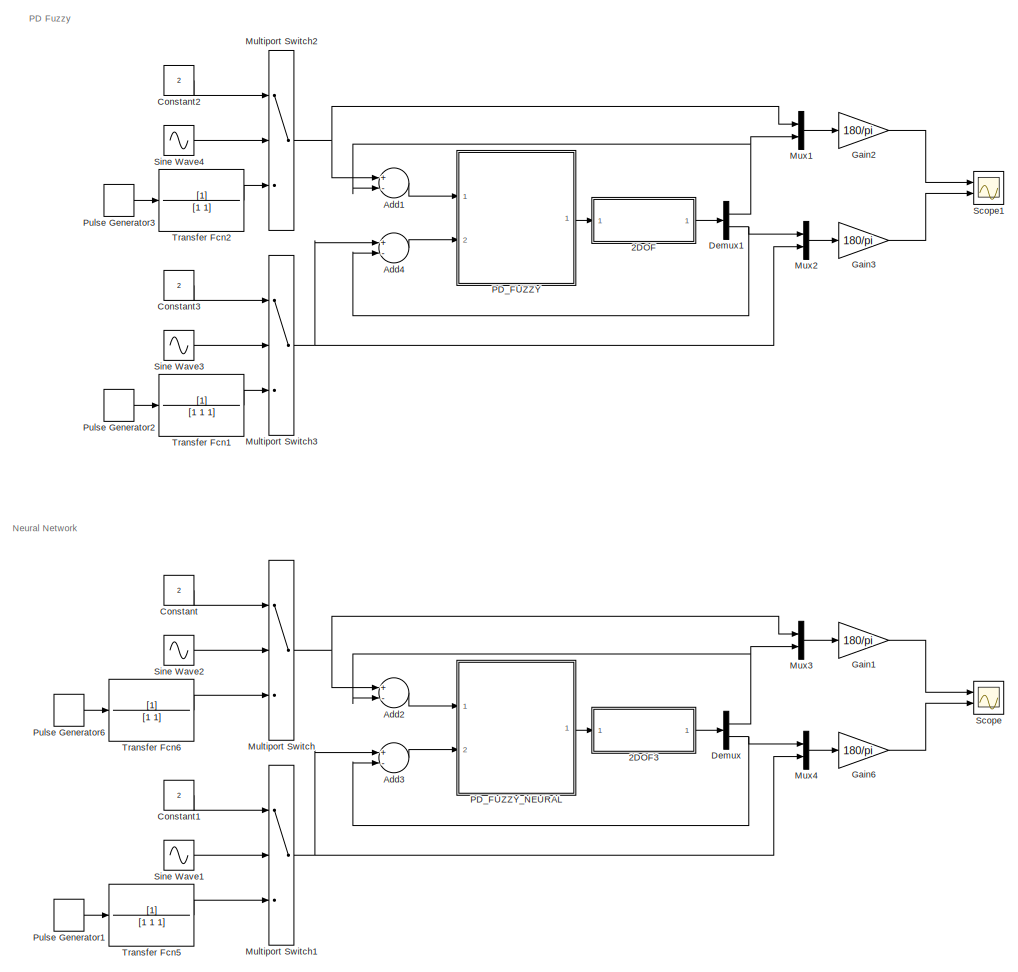
[diagram: root canvas - part 1/2, full width, middle band]
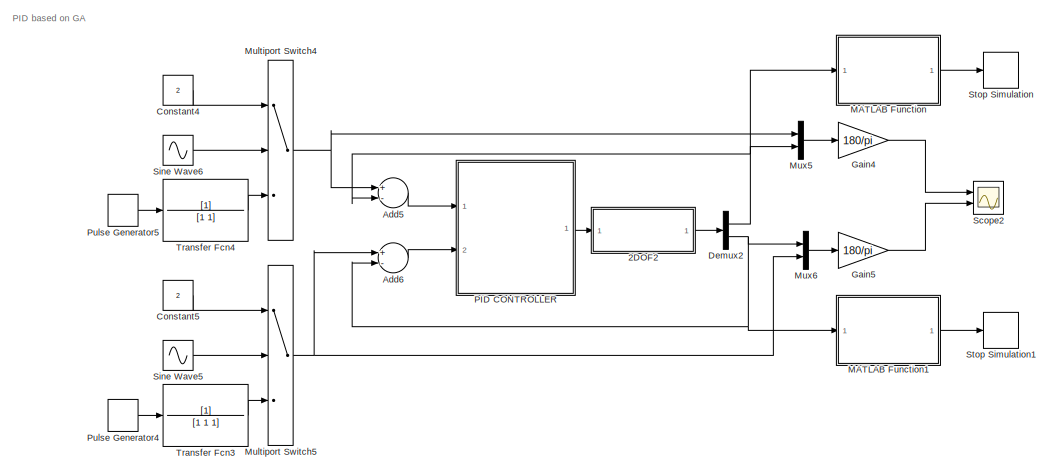
[diagram: root canvas - part 2/2, full width, bottom band]
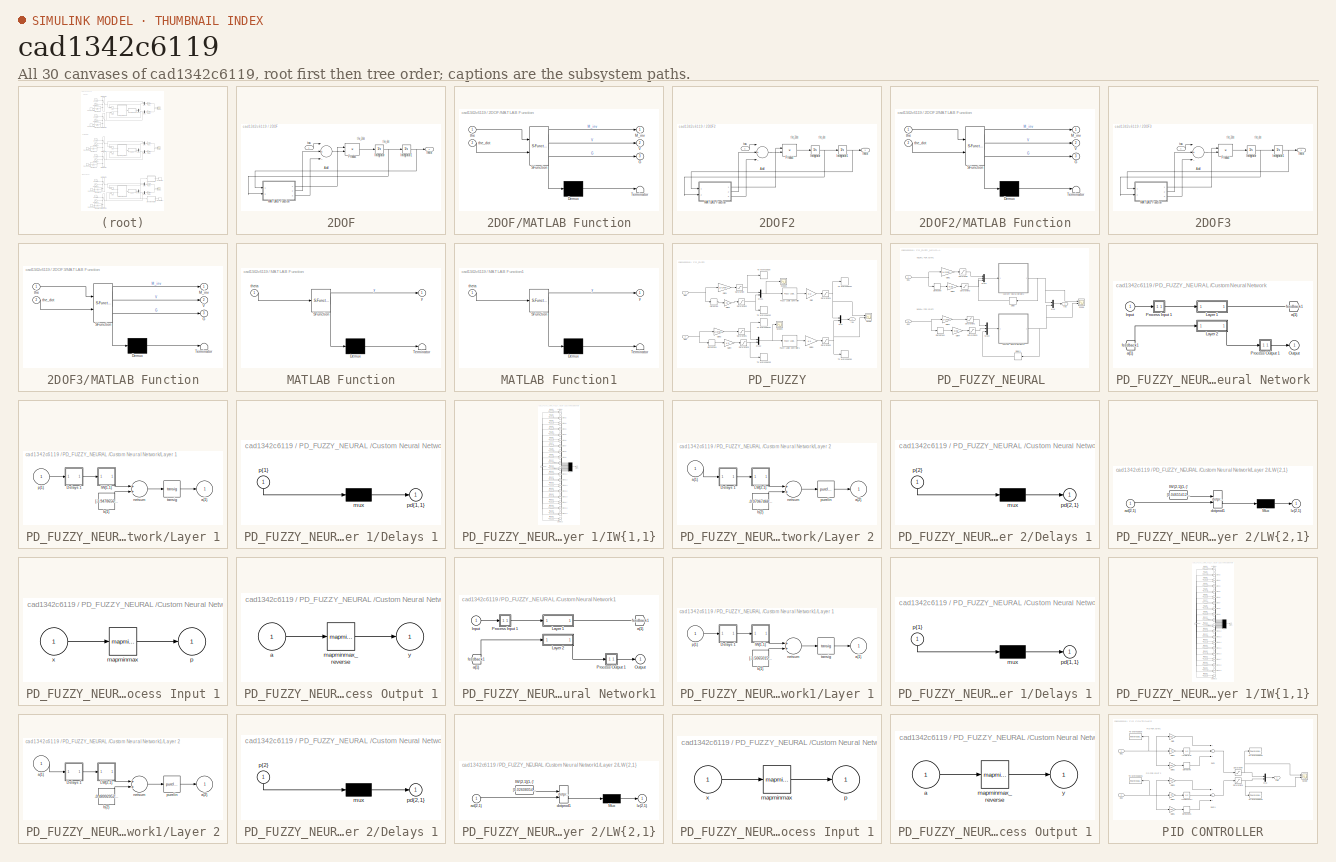
[diagram: thumbnail index - all 30 canvases of the model, root first then tree order]
MODEL slx_cad1342c6119
KIND model
CONFIG AbsTol = auto
CONFIG EnableMultiTasking = off
CONFIG FixedStep = 0.01
CONFIG MaxStep = auto
CONFIG MinStep = auto
CONFIG RelTol = 1e-3
CONFIG SampleTimeConstraint = Unconstrained
CONFIG Solver = FixedStepAuto
CONFIG SolverName = FixedStepAuto
CONFIG StartTime = 0.0
CONFIG StopTime = 10
BLOCK [SubSystem] 2DOF
  Ports = [1, 1]
  RequestExecContextInheritance = off
  Variant = off
BLOCK [Sum] 2DOF/Add
  InputSameDT = off
  Inputs = |+--
  OutDataTypeStr = Inherit: Inherit via internal rule
  Ports = [3, 1]
  SaturateOnIntegerOverflow = off
BLOCK [Integrator] 2DOF/Integrator
  InitialCondition = [0;0]
  Ports = [1, 1]
BLOCK [Integrator] 2DOF/Integrator1
  InitialCondition = [0;0]
  Ports = [1, 1]
BLOCK [SubSystem] 2DOF/MATLAB Function
  ErrorFcn = Stateflow.Translate.translate
  PermitHierarchicalResolution = ExplicitOnly
  Ports = [2, 3]
  RequestExecContextInheritance = off
  SFBlockType = MATLAB Function
  TreatAsAtomicUnit = on
  Variant = off
BLOCK [Demux] 2DOF/MATLAB Function/ Demux 
  Outputs = 1
  Ports = [1, 1]
BLOCK [S-Function] 2DOF/MATLAB Function/ SFunction 
  EnableBusSupport = on
  FunctionName = sf_sfun
  PortCounts = [2 4]
  Ports = [2, 4]
  SFcnIsStateOwnerBlock = off
  SFunctionDeploymentMode = off
  Tag = Stateflow S-Function RobotArm 1
BLOCK [Terminator] 2DOF/MATLAB Function/ Terminator 
BLOCK [Outport] 2DOF/MATLAB Function/G
  IconDisplay = Port number
  Port = 3
BLOCK [Outport] 2DOF/MATLAB Function/M_inv
  IconDisplay = Port number
BLOCK [Outport] 2DOF/MATLAB Function/V
  IconDisplay = Port number
  Port = 2
BLOCK [Inport] 2DOF/MATLAB Function/the
  IconDisplay = Port number
BLOCK [Inport] 2DOF/MATLAB Function/the_dot
  IconDisplay = Port number
  Port = 2
BLOCK [Product] 2DOF/Product
  InputSameDT = off
  Multiplication = Matrix(*)
  OutDataTypeStr = Inherit: Inherit via internal rule
  Ports = [2, 1]
  RndMeth = Floor
  SaturateOnIntegerOverflow = off
BLOCK [Inport] 2DOF/tau
  IconDisplay = Port number
BLOCK [Outport] 2DOF/theta 
  IconDisplay = Port number
BLOCK [SubSystem] 2DOF2
  Commented = on
  Ports = [1, 1]
  RequestExecContextInheritance = off
  Variant = off
BLOCK [Sum] 2DOF2/Add
  InputSameDT = off
  Inputs = |+--
  OutDataTypeStr = Inherit: Inherit via internal rule
  Ports = [3, 1]
  SaturateOnIntegerOverflow = off
BLOCK [Integrator] 2DOF2/Integrator
  InitialCondition = [0;0]
  Ports = [1, 1]
BLOCK [Integrator] 2DOF2/Integrator1
  InitialCondition = [0;0]
  Ports = [1, 1]
BLOCK [SubSystem] 2DOF2/MATLAB Function
  ErrorFcn = Stateflow.Translate.translate
  PermitHierarchicalResolution = ExplicitOnly
  Ports = [2, 3]
  RequestExecContextInheritance = off
  SFBlockType = MATLAB Function
  TreatAsAtomicUnit = on
  Variant = off
BLOCK [Demux] 2DOF2/MATLAB Function/ Demux 
  Outputs = 1
  Ports = [1, 1]
BLOCK [S-Function] 2DOF2/MATLAB Function/ SFunction 
  EnableBusSupport = on
  FunctionName = sf_sfun
  PortCounts = [2 4]
  Ports = [2, 4]
  SFcnIsStateOwnerBlock = off
  SFunctionDeploymentMode = off
  Tag = Stateflow S-Function RobotArm 3
BLOCK [Terminator] 2DOF2/MATLAB Function/ Terminator 
BLOCK [Outport] 2DOF2/MATLAB Function/G
  IconDisplay = Port number
  Port = 3
BLOCK [Outport] 2DOF2/MATLAB Function/M_inv
  IconDisplay = Port number
BLOCK [Outport] 2DOF2/MATLAB Function/V
  IconDisplay = Port number
  Port = 2
BLOCK [Inport] 2DOF2/MATLAB Function/the
  IconDisplay = Port number
BLOCK [Inport] 2DOF2/MATLAB Function/the_dot
  IconDisplay = Port number
  Port = 2
BLOCK [Product] 2DOF2/Product
  InputSameDT = off
  Multiplication = Matrix(*)
  OutDataTypeStr = Inherit: Inherit via internal rule
  Ports = [2, 1]
  RndMeth = Floor
  SaturateOnIntegerOverflow = off
BLOCK [Inport] 2DOF2/tau
  IconDisplay = Port number
BLOCK [Outport] 2DOF2/theta 
  IconDisplay = Port number
BLOCK [SubSystem] 2DOF3
  Ports = [1, 1]
  RequestExecContextInheritance = off
  Variant = off
BLOCK [Sum] 2DOF3/Add
  InputSameDT = off
  Inputs = |+--
  OutDataTypeStr = Inherit: Inherit via internal rule
  Ports = [3, 1]
  SaturateOnIntegerOverflow = off
BLOCK [Integrator] 2DOF3/Integrator
  InitialCondition = [0;0]
  Ports = [1, 1]
BLOCK [Integrator] 2DOF3/Integrator1
  InitialCondition = [0;0]
  Ports = [1, 1]
BLOCK [SubSystem] 2DOF3/MATLAB Function
  ErrorFcn = Stateflow.Translate.translate
  PermitHierarchicalResolution = ExplicitOnly
  Ports = [2, 3]
  RequestExecContextInheritance = off
  SFBlockType = MATLAB Function
  TreatAsAtomicUnit = on
  Variant = off
BLOCK [Demux] 2DOF3/MATLAB Function/ Demux 
  Outputs = 1
  Ports = [1, 1]
BLOCK [S-Function] 2DOF3/MATLAB Function/ SFunction 
  EnableBusSupport = on
  FunctionName = sf_sfun
  PortCounts = [2 4]
  Ports = [2, 4]
  SFcnIsStateOwnerBlock = off
  SFunctionDeploymentMode = off
  Tag = Stateflow S-Function RobotArm 2
BLOCK [Terminator] 2DOF3/MATLAB Function/ Terminator 
BLOCK [Outport] 2DOF3/MATLAB Function/G
  IconDisplay = Port number
  Port = 3
BLOCK [Outport] 2DOF3/MATLAB Function/M_inv
  IconDisplay = Port number
BLOCK [Outport] 2DOF3/MATLAB Function/V
  IconDisplay = Port number
  Port = 2
BLOCK [Inport] 2DOF3/MATLAB Function/the
  IconDisplay = Port number
BLOCK [Inport] 2DOF3/MATLAB Function/the_dot
  IconDisplay = Port number
  Port = 2
BLOCK [Product] 2DOF3/Product
  InputSameDT = off
  Multiplication = Matrix(*)
  OutDataTypeStr = Inherit: Inherit via internal rule
  Ports = [2, 1]
  RndMeth = Floor
  SaturateOnIntegerOverflow = off
BLOCK [Inport] 2DOF3/tau
  IconDisplay = Port number
BLOCK [Outport] 2DOF3/theta 
  IconDisplay = Port number
BLOCK [Sum] Add1
  InputSameDT = off
  Inputs = +-
  OutDataTypeStr = Inherit: Inherit via internal rule
  Ports = [2, 1]
  SaturateOnIntegerOverflow = off
BLOCK [Sum] Add2
  InputSameDT = off
  Inputs = +-
  OutDataTypeStr = Inherit: Inherit via internal rule
  Ports = [2, 1]
  SaturateOnIntegerOverflow = off
BLOCK [Sum] Add3
  InputSameDT = off
  Inputs = +-
  OutDataTypeStr = Inherit: Inherit via internal rule
  Ports = [2, 1]
  SaturateOnIntegerOverflow = off
BLOCK [Sum] Add4
  InputSameDT = off
  Inputs = +-
  OutDataTypeStr = Inherit: Inherit via internal rule
  Ports = [2, 1]
  SaturateOnIntegerOverflow = off
BLOCK [Sum] Add5
  Commented = on
  InputSameDT = off
  Inputs = +-
  OutDataTypeStr = Inherit: Inherit via internal rule
  Ports = [2, 1]
  SaturateOnIntegerOverflow = off
BLOCK [Sum] Add6
  Commented = on
  InputSameDT = off
  Inputs = +-
  OutDataTypeStr = Inherit: Inherit via internal rule
  Ports = [2, 1]
  SaturateOnIntegerOverflow = off
BLOCK [Constant] Constant
  Value = 2
BLOCK [Constant] Constant1
  Value = 2
BLOCK [Constant] Constant2
  Value = 2
BLOCK [Constant] Constant3
  Value = 2
BLOCK [Constant] Constant4
  Commented = on
  Value = 2
BLOCK [Constant] Constant5
  Commented = on
  Value = 2
BLOCK [Demux] Demux
  DisplayOption = bar
  Outputs = 2
  Ports = [1, 2]
BLOCK [Demux] Demux1
  DisplayOption = bar
  Outputs = 2
  Ports = [1, 2]
BLOCK [Demux] Demux2
  Commented = on
  DisplayOption = bar
  Outputs = 2
  Ports = [1, 2]
BLOCK [Gain] Gain1
  Gain = 180/pi
  OutDataTypeStr = Inherit: Inherit via internal rule
  ParamDataTypeStr = Inherit: Inherit via internal rule
  SaturateOnIntegerOverflow = off
BLOCK [Gain] Gain2
  Gain = 180/pi
  OutDataTypeStr = Inherit: Inherit via internal rule
  ParamDataTypeStr = Inherit: Inherit via internal rule
  SaturateOnIntegerOverflow = off
BLOCK [Gain] Gain3
  Gain = 180/pi
  OutDataTypeStr = Inherit: Inherit via internal rule
  ParamDataTypeStr = Inherit: Inherit via internal rule
  SaturateOnIntegerOverflow = off
BLOCK [Gain] Gain4
  Commented = on
  Gain = 180/pi
  OutDataTypeStr = Inherit: Inherit via internal rule
  ParamDataTypeStr = Inherit: Inherit via internal rule
  SaturateOnIntegerOverflow = off
BLOCK [Gain] Gain5
  Commented = on
  Gain = 180/pi
  OutDataTypeStr = Inherit: Inherit via internal rule
  ParamDataTypeStr = Inherit: Inherit via internal rule
  SaturateOnIntegerOverflow = off
BLOCK [Gain] Gain6
  Gain = 180/pi
  OutDataTypeStr = Inherit: Inherit via internal rule
  ParamDataTypeStr = Inherit: Inherit via internal rule
  SaturateOnIntegerOverflow = off
BLOCK [SubSystem] MATLAB Function
  Commented = on
  ErrorFcn = Stateflow.Translate.translate
  PermitHierarchicalResolution = ExplicitOnly
  Ports = [1, 1]
  RequestExecContextInheritance = off
  SFBlockType = MATLAB Function
  TreatAsAtomicUnit = on
  Variant = off
BLOCK [Demux] MATLAB Function/ Demux 
  Outputs = 1
  Ports = [1, 1]
BLOCK [S-Function] MATLAB Function/ SFunction 
  EnableBusSupport = on
  FunctionName = sf_sfun
  PortCounts = [1 2]
  Ports = [1, 2]
  SFcnIsStateOwnerBlock = off
  SFunctionDeploymentMode = off
  Tag = Stateflow S-Function RobotArm 4
BLOCK [Terminator] MATLAB Function/ Terminator 
BLOCK [Inport] MATLAB Function/theta
  IconDisplay = Port number
BLOCK [Outport] MATLAB Function/y
  IconDisplay = Port number
BLOCK [SubSystem] MATLAB Function1
  Commented = on
  ErrorFcn = Stateflow.Translate.translate
  PermitHierarchicalResolution = ExplicitOnly
  Ports = [1, 1]
  RequestExecContextInheritance = off
  SFBlockType = MATLAB Function
  TreatAsAtomicUnit = on
  Variant = off
BLOCK [Demux] MATLAB Function1/ Demux 
  Outputs = 1
  Ports = [1, 1]
BLOCK [S-Function] MATLAB Function1/ SFunction 
  EnableBusSupport = on
  FunctionName = sf_sfun
  PortCounts = [1 2]
  Ports = [1, 2]
  SFcnIsStateOwnerBlock = off
  SFunctionDeploymentMode = off
  Tag = Stateflow S-Function RobotArm 5
BLOCK [Terminator] MATLAB Function1/ Terminator 
BLOCK [Inport] MATLAB Function1/theta
  IconDisplay = Port number
BLOCK [Outport] MATLAB Function1/y
  IconDisplay = Port number
BLOCK [MultiPortSwitch] Multiport Switch
  InputSameDT = off
  Inputs = 2
  Ports = [3, 1]
  SaturateOnIntegerOverflow = off
BLOCK [MultiPortSwitch] Multiport Switch1
  InputSameDT = off
  Inputs = 2
  Ports = [3, 1]
  SaturateOnIntegerOverflow = off
BLOCK [MultiPortSwitch] Multiport Switch2
  InputSameDT = off
  Inputs = 2
  Ports = [3, 1]
  SaturateOnIntegerOverflow = off
BLOCK [MultiPortSwitch] Multiport Switch3
  InputSameDT = off
  Inputs = 2
  Ports = [3, 1]
  SaturateOnIntegerOverflow = off
BLOCK [MultiPortSwitch] Multiport Switch4
  Commented = on
  InputSameDT = off
  Inputs = 2
  Ports = [3, 1]
  SaturateOnIntegerOverflow = off
BLOCK [MultiPortSwitch] Multiport Switch5
  Commented = on
  InputSameDT = off
  Inputs = 2
  Ports = [3, 1]
  SaturateOnIntegerOverflow = off
BLOCK [Mux] Mux1
  DisplayOption = bar
  Inputs = 2
  Ports = [2, 1]
BLOCK [Mux] Mux2
  DisplayOption = bar
  Inputs = 2
  Ports = [2, 1]
BLOCK [Mux] Mux3
  DisplayOption = bar
  Inputs = 2
  Ports = [2, 1]
BLOCK [Mux] Mux4
  DisplayOption = bar
  Inputs = 2
  Ports = [2, 1]
BLOCK [Mux] Mux5
  Commented = on
  DisplayOption = bar
  Inputs = 2
  Ports = [2, 1]
BLOCK [Mux] Mux6
  Commented = on
  DisplayOption = bar
  Inputs = 2
  Ports = [2, 1]
BLOCK [SubSystem] PD_FUZZY
  Ports = [2, 1]
  RequestExecContextInheritance = off
  Variant = off
BLOCK [Derivative] PD_FUZZY/Derivative
BLOCK [Derivative] PD_FUZZY/Derivative1
BLOCK [Reference] PD_FUZZY/Fuzzy Logic Controller  REF=fuzblock/Fuzzy Logic   (lib defined in mdl_858b3b3e7478)
Controller
  Ports = [1, 1]
  SourceBlock = fuzblock/Fuzzy Logic \nController
  SourceProductBaseCode = FL
  SourceProductName = Fuzzy Logic Toolbox
  SourceType = Fuzzy Inference System
BLOCK [Reference] PD_FUZZY/Fuzzy Logic Controller1  REF=fuzblock/Fuzzy Logic   (lib defined in mdl_858b3b3e7478)
Controller
  Ports = [1, 1]
  SourceBlock = fuzblock/Fuzzy Logic \nController
  SourceProductBaseCode = FL
  SourceProductName = Fuzzy Logic Toolbox
  SourceType = Fuzzy Inference System
BLOCK [Gain] PD_FUZZY/Gain
  Gain = K2
  OutDataTypeStr = Inherit: Inherit via internal rule
  ParamDataTypeStr = Inherit: Inherit via internal rule
  SaturateOnIntegerOverflow = off
BLOCK [Gain] PD_FUZZY/Gain1
  Gain = 1/(2*pi)
  OutDataTypeStr = Inherit: Inherit via internal rule
  ParamDataTypeStr = Inherit: Inherit via internal rule
  SaturateOnIntegerOverflow = off
BLOCK [Gain] PD_FUZZY/Gain2
  Gain = K1
  OutDataTypeStr = Inherit: Inherit via internal rule
  ParamDataTypeStr = Inherit: Inherit via internal rule
  SaturateOnIntegerOverflow = off
BLOCK [Gain] PD_FUZZY/Gain3
  Gain = 1/(2*pi)
  OutDataTypeStr = Inherit: Inherit via internal rule
  ParamDataTypeStr = Inherit: Inherit via internal rule
  SaturateOnIntegerOverflow = off
BLOCK [Gain] PD_FUZZY/Gain4
  Gain = K3
  OutDataTypeStr = Inherit: Inherit via internal rule
  ParamDataTypeStr = Inherit: Inherit via internal rule
  SaturateOnIntegerOverflow = off
BLOCK [Gain] PD_FUZZY/Gain5
  Gain = K4
  OutDataTypeStr = Inherit: Inherit via internal rule
  ParamDataTypeStr = Inherit: Inherit via internal rule
  SaturateOnIntegerOverflow = off
BLOCK [Mux] PD_FUZZY/Mux
  DisplayOption = bar
  Inputs = 2
  Ports = [2, 1]
BLOCK [Mux] PD_FUZZY/Mux1
  DisplayOption = bar
  Inputs = 2
  Ports = [2, 1]
BLOCK [Mux] PD_FUZZY/Mux2
  DisplayOption = bar
  Inputs = 2
  Ports = [2, 1]
BLOCK [Saturate] PD_FUZZY/Saturation
  InputPortMap = u0
  LowerLimit = -1
  Ports = [1, 1]
  UpperLimit = 1
BLOCK [Saturate] PD_FUZZY/Saturation1
  InputPortMap = u0
  LowerLimit = -1
  Ports = [1, 1]
  UpperLimit = 1
BLOCK [Saturate] PD_FUZZY/Saturation2
  InputPortMap = u0
  LowerLimit = -1
  Ports = [1, 1]
  UpperLimit = 1
BLOCK [Saturate] PD_FUZZY/Saturation3
  InputPortMap = u0
  LowerLimit = -1
  Ports = [1, 1]
  UpperLimit = 1
BLOCK [Saturate] PD_FUZZY/Saturation4
  InputPortMap = u0
  LowerLimit = -300
  Ports = [1, 1]
  UpperLimit = 300
BLOCK [Saturate] PD_FUZZY/Saturation5
  InputPortMap = u0
  LowerLimit = -300
  Ports = [1, 1]
  UpperLimit = 300
BLOCK [Scope] PD_FUZZY/Scope
  NumInputPorts = 2
  Ports = [2]
  ScopeSpecificationString = Simulink.scopes.TimeScopeBlockCfg('CurrentConfiguration', extmgr.ConfigurationSet(extmgr.Configuration('Core','General UI',true,'FigureColor',[1 1 1]),extmgr.Configuration('Core','Source UI',true),extmgr.Configuration('Sources','WiredSimulink',true,'DataLoggingVariableName','ScopeData1'),extmgr.Configuration('Visuals','Time Domain',true,'SerializedDisplays',{struct('MinYLimReal','-207.36207','MaxY...<+2203ch>
BLOCK [Scope] PD_FUZZY/Scope2
  NumInputPorts = 1
  Ports = [1]
  ScopeSpecificationString = Simulink.scopes.TimeScopeBlockCfg('CurrentConfiguration', extmgr.ConfigurationSet(extmgr.Configuration('Core','General UI',true),extmgr.Configuration('Core','Source UI',true),extmgr.Configuration('Sources','WiredSimulink',true,'DataLoggingVariableName','ScopeData1'),extmgr.Configuration('Visuals','Time Domain',true,'SerializedDisplays',{struct('MinYLimReal','-15000.00000','MaxYLimReal','15000.0000...<+1466ch>
BLOCK [Scope] PD_FUZZY/Scope3
  NumInputPorts = 1
  Ports = [1]
  ScopeSpecificationString = Simulink.scopes.TimeScopeBlockCfg('CurrentConfiguration', extmgr.ConfigurationSet(extmgr.Configuration('Core','General UI',true),extmgr.Configuration('Core','Source UI',true),extmgr.Configuration('Sources','WiredSimulink',true,'DataLoggingVariableName','ScopeData2'),extmgr.Configuration('Visuals','Time Domain',true,'SerializedDisplays',{struct('MinYLimReal','-0.19723','MaxYLimReal','1.13303','YLab...<+1515ch>
BLOCK [ToWorkspace] PD_FUZZY/To Workspace
  FixptAsFi = on
  MaxDataPoints = inf
  Ports = [1]
  SampleTime = -1
  Save2DSignal = 3-D array (concatenate along third dimension)
  VariableName = e1
BLOCK [ToWorkspace] PD_FUZZY/To Workspace1
  FixptAsFi = on
  MaxDataPoints = inf
  Ports = [1]
  SampleTime = -1
  Save2DSignal = 3-D array (concatenate along third dimension)
  VariableName = e2
BLOCK [ToWorkspace] PD_FUZZY/To Workspace2
  FixptAsFi = on
  MaxDataPoints = inf
  Ports = [1]
  SampleTime = -1
  Save2DSignal = 3-D array (concatenate along third dimension)
  VariableName = de1
BLOCK [ToWorkspace] PD_FUZZY/To Workspace3
  FixptAsFi = on
  MaxDataPoints = inf
  Ports = [1]
  SampleTime = -1
  Save2DSignal = 3-D array (concatenate along third dimension)
  VariableName = de2
BLOCK [ToWorkspace] PD_FUZZY/To Workspace4
  FixptAsFi = on
  MaxDataPoints = inf
  Ports = [1]
  SampleTime = -1
  Save2DSignal = 3-D array (concatenate along third dimension)
  VariableName = tau1
BLOCK [ToWorkspace] PD_FUZZY/To Workspace5
  FixptAsFi = on
  MaxDataPoints = inf
  Ports = [1]
  SampleTime = -1
  Save2DSignal = 3-D array (concatenate along third dimension)
  VariableName = tau2
BLOCK [Inport] PD_FUZZY/qd1
  IconDisplay = Port number
BLOCK [Inport] PD_FUZZY/qd2
  IconDisplay = Port number
  Port = 2
BLOCK [Outport] PD_FUZZY/tau
  IconDisplay = Port number
BLOCK [SubSystem] PD_FUZZY_NEURAL 
  Ports = [2, 1]
  RequestExecContextInheritance = off
  Variant = off
BLOCK [SubSystem] PD_FUZZY_NEURAL /Custom Neural Network
  Ports = [1, 1]
  RequestExecContextInheritance = off
  Variant = off
BLOCK [From] PD_FUZZY_NEURAL /Custom Neural Network/ a{1} 
  GotoTag = feedback1
BLOCK [Inport] PD_FUZZY_NEURAL /Custom Neural Network/Input
  IconDisplay = Port number
  PortDimensions = 3
BLOCK [SubSystem] PD_FUZZY_NEURAL /Custom Neural Network/Layer 1
  Ports = [1, 1]
  RequestExecContextInheritance = off
  Variant = off
BLOCK [SubSystem] PD_FUZZY_NEURAL /Custom Neural Network/Layer 1/Delays 1
  Ports = [1, 1]
  RequestExecContextInheritance = off
  Variant = off
BLOCK [Mux] PD_FUZZY_NEURAL /Custom Neural Network/Layer 1/Delays 1/mux
  Inputs = 1
  Ports = [1, 1]
BLOCK [Outport] PD_FUZZY_NEURAL /Custom Neural Network/Layer 1/Delays 1/pd{1,1}
  IconDisplay = Port number
BLOCK [Inport] PD_FUZZY_NEURAL /Custom Neural Network/Layer 1/Delays 1/p{1}
  IconDisplay = Port number
  PortDimensions = 3
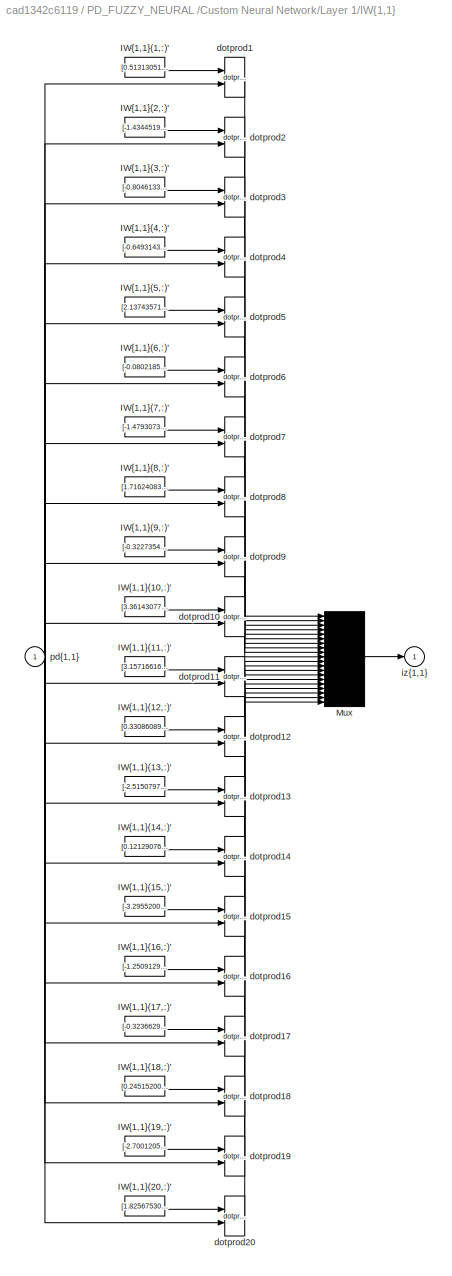
BLOCK [SubSystem] PD_FUZZY_NEURAL /Custom Neural Network/Layer 1/IW{1,1}
  Ports = [1, 1]
  RequestExecContextInheritance = off
  Variant = off
BLOCK [Constant] PD_FUZZY_NEURAL /Custom Neural Network/Layer 1/IW{1,1}/IW{1,1}(1,:)'
  Value = [0.5131305101165060111867433079169131815433502197265625;2.51813552228164194701776068541221320629119873046875;2.652252743452653493960724517819471657276153564453125]
BLOCK [Constant] PD_FUZZY_NEURAL /Custom Neural Network/Layer 1/IW{1,1}/IW{1,1}(10,:)'
  Value = [3.3614307756830061890696015325374901294708251953125;-1.583157714789313441627882639295421540737152099609375;-3.05721403661616886182628149981610476970672607421875]
BLOCK [Constant] PD_FUZZY_NEURAL /Custom Neural Network/Layer 1/IW{1,1}/IW{1,1}(11,:)'
  Value = [3.157166164416679965398770946194417774677276611328125;-0.451930050925487714064132660496397875249385833740234375;-2.46395185234680358377090669819153845310211181640625]
BLOCK [Constant] PD_FUZZY_NEURAL /Custom Neural Network/Layer 1/IW{1,1}/IW{1,1}(12,:)'
  Value = [0.33086089645209082465981964560342021286487579345703125;2.15848214851415765025421933387406170368194580078125;-0.8482749640991669171086186906904913485050201416015625]
BLOCK [Constant] PD_FUZZY_NEURAL /Custom Neural Network/Layer 1/IW{1,1}/IW{1,1}(13,:)'
  Value = [-2.515079785508571585950221560779027640819549560546875;1.84259921525153647081651797634549438953399658203125;-1.8159607855273858234568251646123826503753662109375]
BLOCK [Constant] PD_FUZZY_NEURAL /Custom Neural Network/Layer 1/IW{1,1}/IW{1,1}(14,:)'
  Value = [0.12129076828033376334037285459999111481010913848876953125;-0.31206178978889920205830321719986386597156524658203125;-0.3189122882439094919249100712477229535579681396484375]
BLOCK [Constant] PD_FUZZY_NEURAL /Custom Neural Network/Layer 1/IW{1,1}/IW{1,1}(15,:)'
  Value = [-3.295520054834029100021552949328906834125518798828125;-0.55931988508190932929409200369263999164104461669921875;-1.2961435319055512049857270540087483823299407958984375]
BLOCK [Constant] PD_FUZZY_NEURAL /Custom Neural Network/Layer 1/IW{1,1}/IW{1,1}(16,:)'
  Value = [-1.25091294339438974247968872077763080596923828125;-0.64301078447547854732846417391556315124034881591796875;-2.52613441458652854265665155253373086452484130859375]
BLOCK [Constant] PD_FUZZY_NEURAL /Custom Neural Network/Layer 1/IW{1,1}/IW{1,1}(17,:)'
  Value = [-0.323662937429063324312750182798481546342372894287109375;-1.2255235595849371943444339194684289395809173583984375;0.31269949076578595903441737391403876245021820068359375]
BLOCK [Constant] PD_FUZZY_NEURAL /Custom Neural Network/Layer 1/IW{1,1}/IW{1,1}(18,:)'
  Value = [0.245152006738541705654910174416727386415004730224609375;1.805833223816610821899075745022855699062347412109375;-0.6672973351115765172636429269914515316486358642578125]
BLOCK [Constant] PD_FUZZY_NEURAL /Custom Neural Network/Layer 1/IW{1,1}/IW{1,1}(19,:)'
  Value = [-2.700120580111042389859221657388843595981597900390625;-3.04837671071789184651379400747828185558319091796875;0.1286500666471428744319638326487620361149311065673828125]
BLOCK [Constant] PD_FUZZY_NEURAL /Custom Neural Network/Layer 1/IW{1,1}/IW{1,1}(2,:)'
  Value = [-1.43445194162461842068978512543253600597381591796875;1.5878401806750239710908090273733250796794891357421875;-3.4437081376192697490523642045445740222930908203125]
BLOCK [Constant] PD_FUZZY_NEURAL /Custom Neural Network/Layer 1/IW{1,1}/IW{1,1}(20,:)'
  Value = [1.8256753077150074116019595749094150960445404052734375;-2.581964724225219942610465295729227364063262939453125;0.54145617805975376768401474691927433013916015625]
BLOCK [Constant] PD_FUZZY_NEURAL /Custom Neural Network/Layer 1/IW{1,1}/IW{1,1}(3,:)'
  Value = [-0.8046133444457062022792115385527722537517547607421875;2.0142111207324813193508816766552627086639404296875;2.533747427320545586582056785118766129016876220703125]
BLOCK [Constant] PD_FUZZY_NEURAL /Custom Neural Network/Layer 1/IW{1,1}/IW{1,1}(4,:)'
  Value = [-0.64931439859558992555577106031705625355243682861328125;-1.9030550884346968398830313162761740386486053466796875;0.469421464421036660485953007082571275532245635986328125]
BLOCK [Constant] PD_FUZZY_NEURAL /Custom Neural Network/Layer 1/IW{1,1}/IW{1,1}(5,:)'
  Value = [2.13743571584034430799192705308087170124053955078125;0.81937243736988307762914018894662149250507354736328125;2.48308794191643489313037207466550171375274658203125]
BLOCK [Constant] PD_FUZZY_NEURAL /Custom Neural Network/Layer 1/IW{1,1}/IW{1,1}(6,:)'
  Value = [-0.08021855867552518670748895601718686521053314208984375;-2.049362939789634907583604217506945133209228515625;0.94442054255233520709822414573864080011844635009765625]
BLOCK [Constant] PD_FUZZY_NEURAL /Custom Neural Network/Layer 1/IW{1,1}/IW{1,1}(7,:)'
  Value = [-1.479307380927876724996394841582514345645904541015625;1.2012986008230439605171113726100884377956390380859375;2.15127486043579541075132510741241276264190673828125]
BLOCK [Constant] PD_FUZZY_NEURAL /Custom Neural Network/Layer 1/IW{1,1}/IW{1,1}(8,:)'
  Value = [1.7162408372796551514483098799246363341808319091796875;2.780229444286273388087238345178775489330291748046875;-1.271112166633630469192439704784192144870758056640625]
BLOCK [Constant] PD_FUZZY_NEURAL /Custom Neural Network/Layer 1/IW{1,1}/IW{1,1}(9,:)'
  Value = [-0.322735418211189450943265910609625279903411865234375;-0.7484053008089432967864240708877332508563995361328125;0.1194270670961984082136808638097136281430721282958984375]
BLOCK [Mux] PD_FUZZY_NEURAL /Custom Neural Network/Layer 1/IW{1,1}/Mux
  Inputs = 20
  Ports = [20, 1]
BLOCK [Reference] PD_FUZZY_NEURAL /Custom Neural Network/Layer 1/IW{1,1}/dotprod1  REF=neural/Weight Functions/dotprod
  Ports = [2, 1]
  SourceBlock = neural/Weight Functions/dotprod
  SourceProductBaseCode = Missing
  SourceProductName = MATLAB Runtime - Deep Learning Toolbox
  SourceType = DOTPROD
BLOCK [Reference] PD_FUZZY_NEURAL /Custom Neural Network/Layer 1/IW{1,1}/dotprod10  REF=neural/Weight Functions/dotprod
  Ports = [2, 1]
  SourceBlock = neural/Weight Functions/dotprod
  SourceProductBaseCode = Missing
  SourceProductName = MATLAB Runtime - Deep Learning Toolbox
  SourceType = DOTPROD
BLOCK [Reference] PD_FUZZY_NEURAL /Custom Neural Network/Layer 1/IW{1,1}/dotprod11  REF=neural/Weight Functions/dotprod
  Ports = [2, 1]
  SourceBlock = neural/Weight Functions/dotprod
  SourceProductBaseCode = Missing
  SourceProductName = MATLAB Runtime - Deep Learning Toolbox
  SourceType = DOTPROD
BLOCK [Reference] PD_FUZZY_NEURAL /Custom Neural Network/Layer 1/IW{1,1}/dotprod12  REF=neural/Weight Functions/dotprod
  Ports = [2, 1]
  SourceBlock = neural/Weight Functions/dotprod
  SourceProductBaseCode = Missing
  SourceProductName = MATLAB Runtime - Deep Learning Toolbox
  SourceType = DOTPROD
BLOCK [Reference] PD_FUZZY_NEURAL /Custom Neural Network/Layer 1/IW{1,1}/dotprod13  REF=neural/Weight Functions/dotprod
  Ports = [2, 1]
  SourceBlock = neural/Weight Functions/dotprod
  SourceProductBaseCode = Missing
  SourceProductName = MATLAB Runtime - Deep Learning Toolbox
  SourceType = DOTPROD
BLOCK [Reference] PD_FUZZY_NEURAL /Custom Neural Network/Layer 1/IW{1,1}/dotprod14  REF=neural/Weight Functions/dotprod
  Ports = [2, 1]
  SourceBlock = neural/Weight Functions/dotprod
  SourceProductBaseCode = Missing
  SourceProductName = MATLAB Runtime - Deep Learning Toolbox
  SourceType = DOTPROD
BLOCK [Reference] PD_FUZZY_NEURAL /Custom Neural Network/Layer 1/IW{1,1}/dotprod15  REF=neural/Weight Functions/dotprod
  Ports = [2, 1]
  SourceBlock = neural/Weight Functions/dotprod
  SourceProductBaseCode = Missing
  SourceProductName = MATLAB Runtime - Deep Learning Toolbox
  SourceType = DOTPROD
BLOCK [Reference] PD_FUZZY_NEURAL /Custom Neural Network/Layer 1/IW{1,1}/dotprod16  REF=neural/Weight Functions/dotprod
  Ports = [2, 1]
  SourceBlock = neural/Weight Functions/dotprod
  SourceProductBaseCode = Missing
  SourceProductName = MATLAB Runtime - Deep Learning Toolbox
  SourceType = DOTPROD
BLOCK [Reference] PD_FUZZY_NEURAL /Custom Neural Network/Layer 1/IW{1,1}/dotprod17  REF=neural/Weight Functions/dotprod
  Ports = [2, 1]
  SourceBlock = neural/Weight Functions/dotprod
  SourceProductBaseCode = Missing
  SourceProductName = MATLAB Runtime - Deep Learning Toolbox
  SourceType = DOTPROD
BLOCK [Reference] PD_FUZZY_NEURAL /Custom Neural Network/Layer 1/IW{1,1}/dotprod18  REF=neural/Weight Functions/dotprod
  Ports = [2, 1]
  SourceBlock = neural/Weight Functions/dotprod
  SourceProductBaseCode = Missing
  SourceProductName = MATLAB Runtime - Deep Learning Toolbox
  SourceType = DOTPROD
BLOCK [Reference] PD_FUZZY_NEURAL /Custom Neural Network/Layer 1/IW{1,1}/dotprod19  REF=neural/Weight Functions/dotprod
  Ports = [2, 1]
  SourceBlock = neural/Weight Functions/dotprod
  SourceProductBaseCode = Missing
  SourceProductName = MATLAB Runtime - Deep Learning Toolbox
  SourceType = DOTPROD
BLOCK [Reference] PD_FUZZY_NEURAL /Custom Neural Network/Layer 1/IW{1,1}/dotprod2  REF=neural/Weight Functions/dotprod
  Ports = [2, 1]
  SourceBlock = neural/Weight Functions/dotprod
  SourceProductBaseCode = Missing
  SourceProductName = MATLAB Runtime - Deep Learning Toolbox
  SourceType = DOTPROD
BLOCK [Reference] PD_FUZZY_NEURAL /Custom Neural Network/Layer 1/IW{1,1}/dotprod20  REF=neural/Weight Functions/dotprod
  Ports = [2, 1]
  SourceBlock = neural/Weight Functions/dotprod
  SourceProductBaseCode = Missing
  SourceProductName = MATLAB Runtime - Deep Learning Toolbox
  SourceType = DOTPROD
BLOCK [Reference] PD_FUZZY_NEURAL /Custom Neural Network/Layer 1/IW{1,1}/dotprod3  REF=neural/Weight Functions/dotprod
  Ports = [2, 1]
  SourceBlock = neural/Weight Functions/dotprod
  SourceProductBaseCode = Missing
  SourceProductName = MATLAB Runtime - Deep Learning Toolbox
  SourceType = DOTPROD
BLOCK [Reference] PD_FUZZY_NEURAL /Custom Neural Network/Layer 1/IW{1,1}/dotprod4  REF=neural/Weight Functions/dotprod
  Ports = [2, 1]
  SourceBlock = neural/Weight Functions/dotprod
  SourceProductBaseCode = Missing
  SourceProductName = MATLAB Runtime - Deep Learning Toolbox
  SourceType = DOTPROD
BLOCK [Reference] PD_FUZZY_NEURAL /Custom Neural Network/Layer 1/IW{1,1}/dotprod5  REF=neural/Weight Functions/dotprod
  Ports = [2, 1]
  SourceBlock = neural/Weight Functions/dotprod
  SourceProductBaseCode = Missing
  SourceProductName = MATLAB Runtime - Deep Learning Toolbox
  SourceType = DOTPROD
BLOCK [Reference] PD_FUZZY_NEURAL /Custom Neural Network/Layer 1/IW{1,1}/dotprod6  REF=neural/Weight Functions/dotprod
  Ports = [2, 1]
  SourceBlock = neural/Weight Functions/dotprod
  SourceProductBaseCode = Missing
  SourceProductName = MATLAB Runtime - Deep Learning Toolbox
  SourceType = DOTPROD
BLOCK [Reference] PD_FUZZY_NEURAL /Custom Neural Network/Layer 1/IW{1,1}/dotprod7  REF=neural/Weight Functions/dotprod
  Ports = [2, 1]
  SourceBlock = neural/Weight Functions/dotprod
  SourceProductBaseCode = Missing
  SourceProductName = MATLAB Runtime - Deep Learning Toolbox
  SourceType = DOTPROD
BLOCK [Reference] PD_FUZZY_NEURAL /Custom Neural Network/Layer 1/IW{1,1}/dotprod8  REF=neural/Weight Functions/dotprod
  Ports = [2, 1]
  SourceBlock = neural/Weight Functions/dotprod
  SourceProductBaseCode = Missing
  SourceProductName = MATLAB Runtime - Deep Learning Toolbox
  SourceType = DOTPROD
BLOCK [Reference] PD_FUZZY_NEURAL /Custom Neural Network/Layer 1/IW{1,1}/dotprod9  REF=neural/Weight Functions/dotprod
  Ports = [2, 1]
  SourceBlock = neural/Weight Functions/dotprod
  SourceProductBaseCode = Missing
  SourceProductName = MATLAB Runtime - Deep Learning Toolbox
  SourceType = DOTPROD
BLOCK [Outport] PD_FUZZY_NEURAL /Custom Neural Network/Layer 1/IW{1,1}/iz{1,1}
  IconDisplay = Port number
BLOCK [Inport] PD_FUZZY_NEURAL /Custom Neural Network/Layer 1/IW{1,1}/pd{1,1}
  IconDisplay = Port number
  PortDimensions = 3
BLOCK [Outport] PD_FUZZY_NEURAL /Custom Neural Network/Layer 1/a{1}
  IconDisplay = Port number
  InitialOutput = [0;0;0;0;0;0;0;0;0;0;0;0;0;0;0;0;0;0;0;0]
BLOCK [Constant] PD_FUZZY_NEURAL /Custom Neural Network/Layer 1/b{1}
  Value = [-3.94786562787956452069693114026449620723724365234375;3.167568885080348284333240371779538691043853759765625;3.212254780545562571347772973240353167057037353515625;2.490463077287348614419215664383955299854278564453125;-3.40075863504865250064312931499443948268890380859375;-1.172638651941195764294434411567635834217071533203125;1.350056809818495739961008439422585070133209228515625;-2.03282276985064314...<+711ch>
BLOCK [Sum] PD_FUZZY_NEURAL /Custom Neural Network/Layer 1/netsum
  Inputs = 2
  Ports = [2, 1]
BLOCK [Inport] PD_FUZZY_NEURAL /Custom Neural Network/Layer 1/p{1}
  IconDisplay = Port number
  PortDimensions = 3
BLOCK [Reference] PD_FUZZY_NEURAL /Custom Neural Network/Layer 1/tansig  REF=neural/Transfer Functions/tansig
  Ports = [1, 1]
  SourceBlock = neural/Transfer Functions/tansig
  SourceProductBaseCode = Missing
  SourceProductName = MATLAB Runtime - Deep Learning Toolbox
  SourceType = TANSIG
BLOCK [SubSystem] PD_FUZZY_NEURAL /Custom Neural Network/Layer 2
  Ports = [1, 1]
  RequestExecContextInheritance = off
  Variant = off
BLOCK [SubSystem] PD_FUZZY_NEURAL /Custom Neural Network/Layer 2/Delays 1
  Ports = [1, 1]
  RequestExecContextInheritance = off
  Variant = off
BLOCK [Mux] PD_FUZZY_NEURAL /Custom Neural Network/Layer 2/Delays 1/mux
  Inputs = 1
  Ports = [1, 1]
BLOCK [Outport] PD_FUZZY_NEURAL /Custom Neural Network/Layer 2/Delays 1/pd{2,1}
  IconDisplay = Port number
BLOCK [Inport] PD_FUZZY_NEURAL /Custom Neural Network/Layer 2/Delays 1/p{2}
  IconDisplay = Port number
  PortDimensions = 20
BLOCK [SubSystem] PD_FUZZY_NEURAL /Custom Neural Network/Layer 2/LW{2,1}
  Ports = [1, 1]
  RequestExecContextInheritance = off
  Variant = off
BLOCK [Constant] PD_FUZZY_NEURAL /Custom Neural Network/Layer 2/LW{2,1}/IW{2,1}(1,:)'
  Value = [0.046554121912123817839113115724103408865630626678466796875;0.00016778847839335527133107495156849608974880538880825042724609375;0.01578686841424471742900692561306641437113285064697265625;-0.239614599437442177265467080360394902527332305908203125;-0.00822580942548027140015509672821281128562986850738525390625;-0.0333527887051501270576636670739389955997467041015625;0.006210181379244878070722268859071...<+818ch>
BLOCK [Mux] PD_FUZZY_NEURAL /Custom Neural Network/Layer 2/LW{2,1}/Mux
  Inputs = 1
  Ports = [1, 1]
BLOCK [Inport] PD_FUZZY_NEURAL /Custom Neural Network/Layer 2/LW{2,1}/ad{2,1}
  IconDisplay = Port number
  PortDimensions = 20
BLOCK [Reference] PD_FUZZY_NEURAL /Custom Neural Network/Layer 2/LW{2,1}/dotprod1  REF=neural/Weight Functions/dotprod
  Ports = [2, 1]
  SourceBlock = neural/Weight Functions/dotprod
  SourceProductBaseCode = Missing
  SourceProductName = MATLAB Runtime - Deep Learning Toolbox
  SourceType = DOTPROD
BLOCK [Outport] PD_FUZZY_NEURAL /Custom Neural Network/Layer 2/LW{2,1}/lz{2,1}
  IconDisplay = Port number
BLOCK [Inport] PD_FUZZY_NEURAL /Custom Neural Network/Layer 2/a{1} 
  IconDisplay = Port number
  PortDimensions = 20
BLOCK [Outport] PD_FUZZY_NEURAL /Custom Neural Network/Layer 2/a{2}
  IconDisplay = Port number
  InitialOutput = 0
BLOCK [Constant] PD_FUZZY_NEURAL /Custom Neural Network/Layer 2/b{2}
  Value = -0.070674686693162624973041374687454663217067718505859375
BLOCK [Sum] PD_FUZZY_NEURAL /Custom Neural Network/Layer 2/netsum
  Inputs = 2
  Ports = [2, 1]
BLOCK [Reference] PD_FUZZY_NEURAL /Custom Neural Network/Layer 2/purelin  REF=neural/Transfer Functions/purelin
  Ports = [1, 1]
  SourceBlock = neural/Transfer Functions/purelin
  SourceProductBaseCode = Missing
  SourceProductName = MATLAB Runtime - Deep Learning Toolbox
  SourceType = PURELIN
BLOCK [Outport] PD_FUZZY_NEURAL /Custom Neural Network/Output
  IconDisplay = Port number
  InitialOutput = 0
BLOCK [SubSystem] PD_FUZZY_NEURAL /Custom Neural Network/Process Input 1
  Ports = [1, 1]
  RequestExecContextInheritance = off
  Variant = off
BLOCK [Reference] PD_FUZZY_NEURAL /Custom Neural Network/Process Input 1/mapminmax  REF=neural/Processing Functions/mapminmax
  Ports = [1, 1]
  SourceBlock = neural/Processing Functions/mapminmax
  SourceProductBaseCode = Missing
  SourceProductName = MATLAB Runtime - Deep Learning Toolbox
  SourceType = MAPMINMAX Preprocess
BLOCK [Outport] PD_FUZZY_NEURAL /Custom Neural Network/Process Input 1/p
  IconDisplay = Port number
  PortDimensions = 3
BLOCK [Inport] PD_FUZZY_NEURAL /Custom Neural Network/Process Input 1/x
  IconDisplay = Port number
  PortDimensions = 3
BLOCK [SubSystem] PD_FUZZY_NEURAL /Custom Neural Network/Process Output 1
  Ports = [1, 1]
  RequestExecContextInheritance = off
  Variant = off
BLOCK [Inport] PD_FUZZY_NEURAL /Custom Neural Network/Process Output 1/a
  IconDisplay = Port number
  PortDimensions = 1
BLOCK [Reference] PD_FUZZY_NEURAL /Custom Neural Network/Process Output 1/mapminmax_reverse  REF=neural/Processing Functions/mapminmax_reverse
  Ports = [1, 1]
  SourceBlock = neural/Processing Functions/mapminmax_reverse
  SourceProductBaseCode = Missing
  SourceProductName = MATLAB Runtime - Deep Learning Toolbox
  SourceType = MAPMINMAX Reverse Process
BLOCK [Outport] PD_FUZZY_NEURAL /Custom Neural Network/Process Output 1/y
  IconDisplay = Port number
  PortDimensions = 1
BLOCK [Goto] PD_FUZZY_NEURAL /Custom Neural Network/a{1}
  GotoTag = feedback1
BLOCK [SubSystem] PD_FUZZY_NEURAL /Custom Neural Network1
  Ports = [1, 1]
  RequestExecContextInheritance = off
  Variant = off
BLOCK [From] PD_FUZZY_NEURAL /Custom Neural Network1/ a{1} 
  GotoTag = feedback1
BLOCK [Inport] PD_FUZZY_NEURAL /Custom Neural Network1/Input
  IconDisplay = Port number
  PortDimensions = 3
BLOCK [SubSystem] PD_FUZZY_NEURAL /Custom Neural Network1/Layer 1
  Ports = [1, 1]
  RequestExecContextInheritance = off
  Variant = off
BLOCK [SubSystem] PD_FUZZY_NEURAL /Custom Neural Network1/Layer 1/Delays 1
  Ports = [1, 1]
  RequestExecContextInheritance = off
  Variant = off
BLOCK [Mux] PD_FUZZY_NEURAL /Custom Neural Network1/Layer 1/Delays 1/mux
  Inputs = 1
  Ports = [1, 1]
BLOCK [Outport] PD_FUZZY_NEURAL /Custom Neural Network1/Layer 1/Delays 1/pd{1,1}
  IconDisplay = Port number
BLOCK [Inport] PD_FUZZY_NEURAL /Custom Neural Network1/Layer 1/Delays 1/p{1}
  IconDisplay = Port number
  PortDimensions = 3
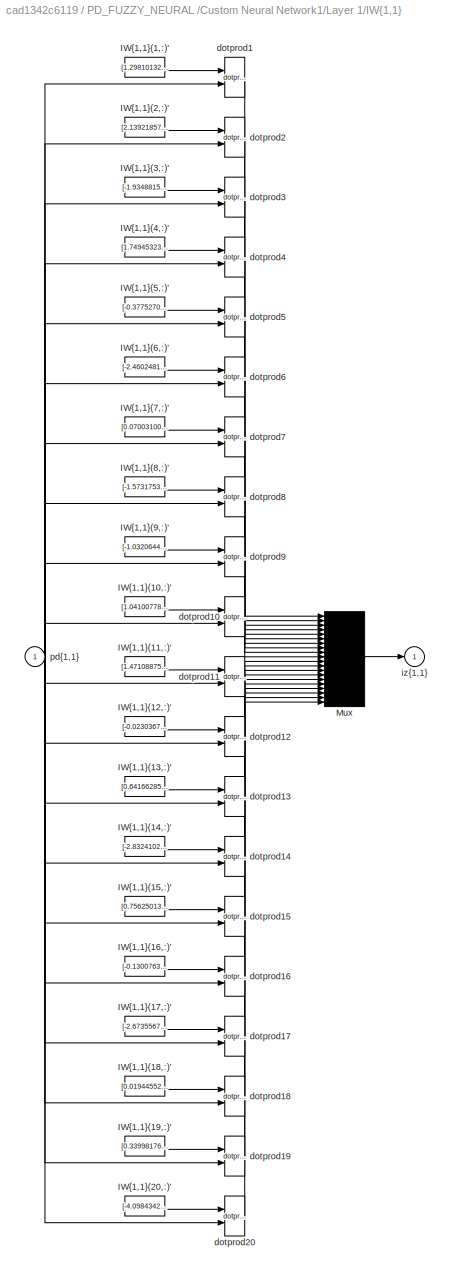
BLOCK [SubSystem] PD_FUZZY_NEURAL /Custom Neural Network1/Layer 1/IW{1,1}
  Ports = [1, 1]
  RequestExecContextInheritance = off
  Variant = off
BLOCK [Constant] PD_FUZZY_NEURAL /Custom Neural Network1/Layer 1/IW{1,1}/IW{1,1}(1,:)'
  Value = [1.298101323448510147073875486967153847217559814453125;2.68668995949206479423310156562365591526031494140625;0.105680713798559811067434566211886703968048095703125]
BLOCK [Constant] PD_FUZZY_NEURAL /Custom Neural Network1/Layer 1/IW{1,1}/IW{1,1}(10,:)'
  Value = [1.041007784178143769082680591964162886142730712890625;1.0913679189835960858800945061375387012958526611328125;-3.79403971379421900422812541364692151546478271484375]
BLOCK [Constant] PD_FUZZY_NEURAL /Custom Neural Network1/Layer 1/IW{1,1}/IW{1,1}(11,:)'
  Value = [1.4710887561372587573060854992945678532123565673828125;-2.594021154299451126234998810105025768280029296875;-0.55809622186945173627492522427928633987903594970703125]
BLOCK [Constant] PD_FUZZY_NEURAL /Custom Neural Network1/Layer 1/IW{1,1}/IW{1,1}(12,:)'
  Value = [-0.02303677398099664153097165808503632433712482452392578125;-0.76517648256534098738512739146244712173938751220703125;0.019126199468667948178079996068845503032207489013671875]
BLOCK [Constant] PD_FUZZY_NEURAL /Custom Neural Network1/Layer 1/IW{1,1}/IW{1,1}(13,:)'
  Value = [0.641662859756776615682838382781483232975006103515625;1.648229245395270492480221946607343852519989013671875;3.25430695858256147090514787123538553714752197265625]
BLOCK [Constant] PD_FUZZY_NEURAL /Custom Neural Network1/Layer 1/IW{1,1}/IW{1,1}(14,:)'
  Value = [-2.83241027958725322122290890547446906566619873046875;-2.545638294362128295489355878089554607868194580078125;1.7885263091579071126346889286651276051998138427734375]
BLOCK [Constant] PD_FUZZY_NEURAL /Custom Neural Network1/Layer 1/IW{1,1}/IW{1,1}(15,:)'
  Value = [0.75625013850906885881641983360168524086475372314453125;2.0612501133497556082829760271124541759490966796875;3.430399247565897979939109063707292079925537109375]
BLOCK [Constant] PD_FUZZY_NEURAL /Custom Neural Network1/Layer 1/IW{1,1}/IW{1,1}(16,:)'
  Value = [-0.1300763915144957649783208353255758993327617645263671875;3.1475687752719210266150184907019138336181640625;-0.168673167062670492644116393421427346765995025634765625]
BLOCK [Constant] PD_FUZZY_NEURAL /Custom Neural Network1/Layer 1/IW{1,1}/IW{1,1}(17,:)'
  Value = [-2.673556776367207010736137817730195820331573486328125;-1.71981529092930518487492008716799318790435791015625;-0.450613133605147375693178446454112417995929718017578125]
BLOCK [Constant] PD_FUZZY_NEURAL /Custom Neural Network1/Layer 1/IW{1,1}/IW{1,1}(18,:)'
  Value = [0.019445527148039480624941433006824809126555919647216796875;0.9852408339296356842851309920661151409149169921875;0.02175143784294740478824081719722016714513301849365234375]
BLOCK [Constant] PD_FUZZY_NEURAL /Custom Neural Network1/Layer 1/IW{1,1}/IW{1,1}(19,:)'
  Value = [0.339981767632175746474132438379456289112567901611328125;-3.835244849837684544269222897128202021121978759765625;-1.3542732867112066141856985268532298505306243896484375]
BLOCK [Constant] PD_FUZZY_NEURAL /Custom Neural Network1/Layer 1/IW{1,1}/IW{1,1}(2,:)'
  Value = [2.1392185739000684208122038398869335651397705078125;1.281674728313323186057459679432213306427001953125;3.641787407070763205041430410346947610378265380859375]
BLOCK [Constant] PD_FUZZY_NEURAL /Custom Neural Network1/Layer 1/IW{1,1}/IW{1,1}(20,:)'
  Value = [-4.09843429918166979319948950433172285556793212890625;0.69057330462055477315885809730389155447483062744140625;0.0223408364389678683326057040403611608780920505523681640625]
BLOCK [Constant] PD_FUZZY_NEURAL /Custom Neural Network1/Layer 1/IW{1,1}/IW{1,1}(3,:)'
  Value = [-1.93488156183017512290689410292543470859527587890625;2.103172833789326734432734156143851578235626220703125;-2.540487994611002608991157103446312248706817626953125]
BLOCK [Constant] PD_FUZZY_NEURAL /Custom Neural Network1/Layer 1/IW{1,1}/IW{1,1}(4,:)'
  Value = [1.7494532335268075939893606118857860565185546875;3.050495676388021326630450857919640839099884033203125;-0.92830260598007707795176202125730924308300018310546875]
BLOCK [Constant] PD_FUZZY_NEURAL /Custom Neural Network1/Layer 1/IW{1,1}/IW{1,1}(5,:)'
  Value = [-0.37752702072625432538899303835933096706867218017578125;-1.137271367403070332358083760482259094715118408203125;1.551047187862562903859497964731417596340179443359375]
BLOCK [Constant] PD_FUZZY_NEURAL /Custom Neural Network1/Layer 1/IW{1,1}/IW{1,1}(6,:)'
  Value = [-2.460248158700125031828065402805805206298828125;0.84061468188021704062151684411219321191310882568359375;2.31296954212943006723435246385633945465087890625]
BLOCK [Constant] PD_FUZZY_NEURAL /Custom Neural Network1/Layer 1/IW{1,1}/IW{1,1}(7,:)'
  Value = [0.0700310004863720914070057688149972818791866302490234375;-1.6712400212012938904848624588339589536190032958984375;-0.0815120027134079994102222599394735880196094512939453125]
BLOCK [Constant] PD_FUZZY_NEURAL /Custom Neural Network1/Layer 1/IW{1,1}/IW{1,1}(8,:)'
  Value = [-1.5731753594485500258315369137562811374664306640625;-1.1714016532727262731583550703362561762332916259765625;3.363686937816534605616425324114970862865447998046875]
BLOCK [Constant] PD_FUZZY_NEURAL /Custom Neural Network1/Layer 1/IW{1,1}/IW{1,1}(9,:)'
  Value = [-1.0320644036352526473621082914178259670734405517578125;-1.4924801652789827510758868811535649001598358154296875;-0.71115224162992252132653447915799915790557861328125]
BLOCK [Mux] PD_FUZZY_NEURAL /Custom Neural Network1/Layer 1/IW{1,1}/Mux
  Inputs = 20
  Ports = [20, 1]
BLOCK [Reference] PD_FUZZY_NEURAL /Custom Neural Network1/Layer 1/IW{1,1}/dotprod1  REF=neural/Weight Functions/dotprod
  Ports = [2, 1]
  SourceBlock = neural/Weight Functions/dotprod
  SourceProductBaseCode = Missing
  SourceProductName = MATLAB Runtime - Deep Learning Toolbox
  SourceType = DOTPROD
BLOCK [Reference] PD_FUZZY_NEURAL /Custom Neural Network1/Layer 1/IW{1,1}/dotprod10  REF=neural/Weight Functions/dotprod
  Ports = [2, 1]
  SourceBlock = neural/Weight Functions/dotprod
  SourceProductBaseCode = Missing
  SourceProductName = MATLAB Runtime - Deep Learning Toolbox
  SourceType = DOTPROD
BLOCK [Reference] PD_FUZZY_NEURAL /Custom Neural Network1/Layer 1/IW{1,1}/dotprod11  REF=neural/Weight Functions/dotprod
  Ports = [2, 1]
  SourceBlock = neural/Weight Functions/dotprod
  SourceProductBaseCode = Missing
  SourceProductName = MATLAB Runtime - Deep Learning Toolbox
  SourceType = DOTPROD
BLOCK [Reference] PD_FUZZY_NEURAL /Custom Neural Network1/Layer 1/IW{1,1}/dotprod12  REF=neural/Weight Functions/dotprod
  Ports = [2, 1]
  SourceBlock = neural/Weight Functions/dotprod
  SourceProductBaseCode = Missing
  SourceProductName = MATLAB Runtime - Deep Learning Toolbox
  SourceType = DOTPROD
BLOCK [Reference] PD_FUZZY_NEURAL /Custom Neural Network1/Layer 1/IW{1,1}/dotprod13  REF=neural/Weight Functions/dotprod
  Ports = [2, 1]
  SourceBlock = neural/Weight Functions/dotprod
  SourceProductBaseCode = Missing
  SourceProductName = MATLAB Runtime - Deep Learning Toolbox
  SourceType = DOTPROD
BLOCK [Reference] PD_FUZZY_NEURAL /Custom Neural Network1/Layer 1/IW{1,1}/dotprod14  REF=neural/Weight Functions/dotprod
  Ports = [2, 1]
  SourceBlock = neural/Weight Functions/dotprod
  SourceProductBaseCode = Missing
  SourceProductName = MATLAB Runtime - Deep Learning Toolbox
  SourceType = DOTPROD
BLOCK [Reference] PD_FUZZY_NEURAL /Custom Neural Network1/Layer 1/IW{1,1}/dotprod15  REF=neural/Weight Functions/dotprod
  Ports = [2, 1]
  SourceBlock = neural/Weight Functions/dotprod
  SourceProductBaseCode = Missing
  SourceProductName = MATLAB Runtime - Deep Learning Toolbox
  SourceType = DOTPROD
BLOCK [Reference] PD_FUZZY_NEURAL /Custom Neural Network1/Layer 1/IW{1,1}/dotprod16  REF=neural/Weight Functions/dotprod
  Ports = [2, 1]
  SourceBlock = neural/Weight Functions/dotprod
  SourceProductBaseCode = Missing
  SourceProductName = MATLAB Runtime - Deep Learning Toolbox
  SourceType = DOTPROD
BLOCK [Reference] PD_FUZZY_NEURAL /Custom Neural Network1/Layer 1/IW{1,1}/dotprod17  REF=neural/Weight Functions/dotprod
  Ports = [2, 1]
  SourceBlock = neural/Weight Functions/dotprod
  SourceProductBaseCode = Missing
  SourceProductName = MATLAB Runtime - Deep Learning Toolbox
  SourceType = DOTPROD
BLOCK [Reference] PD_FUZZY_NEURAL /Custom Neural Network1/Layer 1/IW{1,1}/dotprod18  REF=neural/Weight Functions/dotprod
  Ports = [2, 1]
  SourceBlock = neural/Weight Functions/dotprod
  SourceProductBaseCode = Missing
  SourceProductName = MATLAB Runtime - Deep Learning Toolbox
  SourceType = DOTPROD
BLOCK [Reference] PD_FUZZY_NEURAL /Custom Neural Network1/Layer 1/IW{1,1}/dotprod19  REF=neural/Weight Functions/dotprod
  Ports = [2, 1]
  SourceBlock = neural/Weight Functions/dotprod
  SourceProductBaseCode = Missing
  SourceProductName = MATLAB Runtime - Deep Learning Toolbox
  SourceType = DOTPROD
BLOCK [Reference] PD_FUZZY_NEURAL /Custom Neural Network1/Layer 1/IW{1,1}/dotprod2  REF=neural/Weight Functions/dotprod
  Ports = [2, 1]
  SourceBlock = neural/Weight Functions/dotprod
  SourceProductBaseCode = Missing
  SourceProductName = MATLAB Runtime - Deep Learning Toolbox
  SourceType = DOTPROD
BLOCK [Reference] PD_FUZZY_NEURAL /Custom Neural Network1/Layer 1/IW{1,1}/dotprod20  REF=neural/Weight Functions/dotprod
  Ports = [2, 1]
  SourceBlock = neural/Weight Functions/dotprod
  SourceProductBaseCode = Missing
  SourceProductName = MATLAB Runtime - Deep Learning Toolbox
  SourceType = DOTPROD
BLOCK [Reference] PD_FUZZY_NEURAL /Custom Neural Network1/Layer 1/IW{1,1}/dotprod3  REF=neural/Weight Functions/dotprod
  Ports = [2, 1]
  SourceBlock = neural/Weight Functions/dotprod
  SourceProductBaseCode = Missing
  SourceProductName = MATLAB Runtime - Deep Learning Toolbox
  SourceType = DOTPROD
BLOCK [Reference] PD_FUZZY_NEURAL /Custom Neural Network1/Layer 1/IW{1,1}/dotprod4  REF=neural/Weight Functions/dotprod
  Ports = [2, 1]
  SourceBlock = neural/Weight Functions/dotprod
  SourceProductBaseCode = Missing
  SourceProductName = MATLAB Runtime - Deep Learning Toolbox
  SourceType = DOTPROD
BLOCK [Reference] PD_FUZZY_NEURAL /Custom Neural Network1/Layer 1/IW{1,1}/dotprod5  REF=neural/Weight Functions/dotprod
  Ports = [2, 1]
  SourceBlock = neural/Weight Functions/dotprod
  SourceProductBaseCode = Missing
  SourceProductName = MATLAB Runtime - Deep Learning Toolbox
  SourceType = DOTPROD
BLOCK [Reference] PD_FUZZY_NEURAL /Custom Neural Network1/Layer 1/IW{1,1}/dotprod6  REF=neural/Weight Functions/dotprod
  Ports = [2, 1]
  SourceBlock = neural/Weight Functions/dotprod
  SourceProductBaseCode = Missing
  SourceProductName = MATLAB Runtime - Deep Learning Toolbox
  SourceType = DOTPROD
BLOCK [Reference] PD_FUZZY_NEURAL /Custom Neural Network1/Layer 1/IW{1,1}/dotprod7  REF=neural/Weight Functions/dotprod
  Ports = [2, 1]
  SourceBlock = neural/Weight Functions/dotprod
  SourceProductBaseCode = Missing
  SourceProductName = MATLAB Runtime - Deep Learning Toolbox
  SourceType = DOTPROD
BLOCK [Reference] PD_FUZZY_NEURAL /Custom Neural Network1/Layer 1/IW{1,1}/dotprod8  REF=neural/Weight Functions/dotprod
  Ports = [2, 1]
  SourceBlock = neural/Weight Functions/dotprod
  SourceProductBaseCode = Missing
  SourceProductName = MATLAB Runtime - Deep Learning Toolbox
  SourceType = DOTPROD
BLOCK [Reference] PD_FUZZY_NEURAL /Custom Neural Network1/Layer 1/IW{1,1}/dotprod9  REF=neural/Weight Functions/dotprod
  Ports = [2, 1]
  SourceBlock = neural/Weight Functions/dotprod
  SourceProductBaseCode = Missing
  SourceProductName = MATLAB Runtime - Deep Learning Toolbox
  SourceType = DOTPROD
BLOCK [Outport] PD_FUZZY_NEURAL /Custom Neural Network1/Layer 1/IW{1,1}/iz{1,1}
  IconDisplay = Port number
BLOCK [Inport] PD_FUZZY_NEURAL /Custom Neural Network1/Layer 1/IW{1,1}/pd{1,1}
  IconDisplay = Port number
  PortDimensions = 3
BLOCK [Outport] PD_FUZZY_NEURAL /Custom Neural Network1/Layer 1/a{1}
  IconDisplay = Port number
  InitialOutput = [0;0;0;0;0;0;0;0;0;0;0;0;0;0;0;0;0;0;0;0]
BLOCK [Constant] PD_FUZZY_NEURAL /Custom Neural Network1/Layer 1/b{1}
  Value = [-3.506501546846958472514188542845658957958221435546875;-3.44389608487562259853120849584229290485382080078125;2.371875229452354627568411160609684884548187255859375;-3.674354609176769148604080328368581831455230712890625;1.660283976631213409547171977465040981769561767578125;3.689005567187383594074390202877111732959747314453125;0.74431709487771480215911878985934890806674957275390625;1.214922304819735...<+708ch>
BLOCK [Sum] PD_FUZZY_NEURAL /Custom Neural Network1/Layer 1/netsum
  Inputs = 2
  Ports = [2, 1]
BLOCK [Inport] PD_FUZZY_NEURAL /Custom Neural Network1/Layer 1/p{1}
  IconDisplay = Port number
  PortDimensions = 3
BLOCK [Reference] PD_FUZZY_NEURAL /Custom Neural Network1/Layer 1/tansig  REF=neural/Transfer Functions/tansig
  Ports = [1, 1]
  SourceBlock = neural/Transfer Functions/tansig
  SourceProductBaseCode = Missing
  SourceProductName = MATLAB Runtime - Deep Learning Toolbox
  SourceType = TANSIG
BLOCK [SubSystem] PD_FUZZY_NEURAL /Custom Neural Network1/Layer 2
  Ports = [1, 1]
  RequestExecContextInheritance = off
  Variant = off
BLOCK [SubSystem] PD_FUZZY_NEURAL /Custom Neural Network1/Layer 2/Delays 1
  Ports = [1, 1]
  RequestExecContextInheritance = off
  Variant = off
BLOCK [Mux] PD_FUZZY_NEURAL /Custom Neural Network1/Layer 2/Delays 1/mux
  Inputs = 1
  Ports = [1, 1]
BLOCK [Outport] PD_FUZZY_NEURAL /Custom Neural Network1/Layer 2/Delays 1/pd{2,1}
  IconDisplay = Port number
BLOCK [Inport] PD_FUZZY_NEURAL /Custom Neural Network1/Layer 2/Delays 1/p{2}
  IconDisplay = Port number
  PortDimensions = 20
BLOCK [SubSystem] PD_FUZZY_NEURAL /Custom Neural Network1/Layer 2/LW{2,1}
  Ports = [1, 1]
  RequestExecContextInheritance = off
  Variant = off
BLOCK [Constant] PD_FUZZY_NEURAL /Custom Neural Network1/Layer 2/LW{2,1}/IW{2,1}(1,:)'
  Value = [0.0260805455288128616719856012196032679639756679534912109375;-0.0031325125071500238560506801377414376474916934967041015625;0.000495277192721998754838808043388098667492158710956573486328125;0.00760022526004941294253125505520074511878192424774169921875;-0.0263516857164060348817091750106555991806089878082275390625;-0.0016089836069958919455291646016803497332148253917694091796875;-0.218412245042762048...<+849ch>
BLOCK [Mux] PD_FUZZY_NEURAL /Custom Neural Network1/Layer 2/LW{2,1}/Mux
  Inputs = 1
  Ports = [1, 1]
BLOCK [Inport] PD_FUZZY_NEURAL /Custom Neural Network1/Layer 2/LW{2,1}/ad{2,1}
  IconDisplay = Port number
  PortDimensions = 20
BLOCK [Reference] PD_FUZZY_NEURAL /Custom Neural Network1/Layer 2/LW{2,1}/dotprod1  REF=neural/Weight Functions/dotprod
  Ports = [2, 1]
  SourceBlock = neural/Weight Functions/dotprod
  SourceProductBaseCode = Missing
  SourceProductName = MATLAB Runtime - Deep Learning Toolbox
  SourceType = DOTPROD
BLOCK [Outport] PD_FUZZY_NEURAL /Custom Neural Network1/Layer 2/LW{2,1}/lz{2,1}
  IconDisplay = Port number
BLOCK [Inport] PD_FUZZY_NEURAL /Custom Neural Network1/Layer 2/a{1} 
  IconDisplay = Port number
  PortDimensions = 20
BLOCK [Outport] PD_FUZZY_NEURAL /Custom Neural Network1/Layer 2/a{2}
  IconDisplay = Port number
  InitialOutput = 0
BLOCK [Constant] PD_FUZZY_NEURAL /Custom Neural Network1/Layer 2/b{2}
  Value = -0.489929523631658592197624102482222951948642730712890625
BLOCK [Sum] PD_FUZZY_NEURAL /Custom Neural Network1/Layer 2/netsum
  Inputs = 2
  Ports = [2, 1]
BLOCK [Reference] PD_FUZZY_NEURAL /Custom Neural Network1/Layer 2/purelin  REF=neural/Transfer Functions/purelin
  Ports = [1, 1]
  SourceBlock = neural/Transfer Functions/purelin
  SourceProductBaseCode = Missing
  SourceProductName = MATLAB Runtime - Deep Learning Toolbox
  SourceType = PURELIN
BLOCK [Outport] PD_FUZZY_NEURAL /Custom Neural Network1/Output
  IconDisplay = Port number
  InitialOutput = 0
BLOCK [SubSystem] PD_FUZZY_NEURAL /Custom Neural Network1/Process Input 1
  Ports = [1, 1]
  RequestExecContextInheritance = off
  Variant = off
BLOCK [Reference] PD_FUZZY_NEURAL /Custom Neural Network1/Process Input 1/mapminmax  REF=neural/Processing Functions/mapminmax
  Ports = [1, 1]
  SourceBlock = neural/Processing Functions/mapminmax
  SourceProductBaseCode = Missing
  SourceProductName = MATLAB Runtime - Deep Learning Toolbox
  SourceType = MAPMINMAX Preprocess
BLOCK [Outport] PD_FUZZY_NEURAL /Custom Neural Network1/Process Input 1/p
  IconDisplay = Port number
  PortDimensions = 3
BLOCK [Inport] PD_FUZZY_NEURAL /Custom Neural Network1/Process Input 1/x
  IconDisplay = Port number
  PortDimensions = 3
BLOCK [SubSystem] PD_FUZZY_NEURAL /Custom Neural Network1/Process Output 1
  Ports = [1, 1]
  RequestExecContextInheritance = off
  Variant = off
BLOCK [Inport] PD_FUZZY_NEURAL /Custom Neural Network1/Process Output 1/a
  IconDisplay = Port number
  PortDimensions = 1
BLOCK [Reference] PD_FUZZY_NEURAL /Custom Neural Network1/Process Output 1/mapminmax_reverse  REF=neural/Processing Functions/mapminmax_reverse
  Ports = [1, 1]
  SourceBlock = neural/Processing Functions/mapminmax_reverse
  SourceProductBaseCode = Missing
  SourceProductName = MATLAB Runtime - Deep Learning Toolbox
  SourceType = MAPMINMAX Reverse Process
BLOCK [Outport] PD_FUZZY_NEURAL /Custom Neural Network1/Process Output 1/y
  IconDisplay = Port number
  PortDimensions = 1
BLOCK [Goto] PD_FUZZY_NEURAL /Custom Neural Network1/a{1}
  GotoTag = feedback1
BLOCK [Delay] PD_FUZZY_NEURAL /Delay
  DelayLength = 1
  InputPortMap = u0
  Ports = [1, 1]
BLOCK [Delay] PD_FUZZY_NEURAL /Delay1
  DelayLength = 1
  InputPortMap = u0
  Ports = [1, 1]
BLOCK [Derivative] PD_FUZZY_NEURAL /Derivative
BLOCK [Derivative] PD_FUZZY_NEURAL /Derivative1
BLOCK [Gain] PD_FUZZY_NEURAL /Gain1
  Gain = 1/(2*pi)
  OutDataTypeStr = Inherit: Inherit via internal rule
  ParamDataTypeStr = Inherit: Inherit via internal rule
  SaturateOnIntegerOverflow = off
BLOCK [Gain] PD_FUZZY_NEURAL /Gain2
  Gain = 0.02
  OutDataTypeStr = Inherit: Inherit via internal rule
  ParamDataTypeStr = Inherit: Inherit via internal rule
  SaturateOnIntegerOverflow = off
BLOCK [Gain] PD_FUZZY_NEURAL /Gain3
  Gain = 1/(2*pi)
  OutDataTypeStr = Inherit: Inherit via internal rule
  ParamDataTypeStr = Inherit: Inherit via internal rule
  SaturateOnIntegerOverflow = off
BLOCK [Gain] PD_FUZZY_NEURAL /Gain4
  Gain = 0.02
  OutDataTypeStr = Inherit: Inherit via internal rule
  ParamDataTypeStr = Inherit: Inherit via internal rule
  SaturateOnIntegerOverflow = off
BLOCK [Mux] PD_FUZZY_NEURAL /Mux
  DisplayOption = bar
  Inputs = 2
  Ports = [2, 1]
BLOCK [Mux] PD_FUZZY_NEURAL /Mux1
  DisplayOption = bar
  Inputs = 3
  Ports = [3, 1]
BLOCK [Mux] PD_FUZZY_NEURAL /Mux2
  DisplayOption = bar
  Inputs = 3
  Ports = [3, 1]
BLOCK [Saturate] PD_FUZZY_NEURAL /Saturation
  InputPortMap = u0
  LowerLimit = -1
  Ports = [1, 1]
  UpperLimit = 1
BLOCK [Saturate] PD_FUZZY_NEURAL /Saturation1
  InputPortMap = u0
  LowerLimit = -1
  Ports = [1, 1]
  UpperLimit = 1
BLOCK [Saturate] PD_FUZZY_NEURAL /Saturation2
  InputPortMap = u0
  LowerLimit = -1
  Ports = [1, 1]
  UpperLimit = 1
BLOCK [Saturate] PD_FUZZY_NEURAL /Saturation3
  InputPortMap = u0
  LowerLimit = -1
  Ports = [1, 1]
  UpperLimit = 1
BLOCK [Scope] PD_FUZZY_NEURAL /Scope
  NumInputPorts = 2
  Ports = [2]
  ScopeSpecificationString = Simulink.scopes.TimeScopeBlockCfg('CurrentConfiguration', extmgr.ConfigurationSet(extmgr.Configuration('Core','General UI',true,'FigureColor',[1 1 1]),extmgr.Configuration('Core','Source UI',true),extmgr.Configuration('Sources','WiredSimulink',true,'DataLoggingVariableName','ScopeData1'),extmgr.Configuration('Visuals','Time Domain',true,'SerializedDisplays',{struct('MinYLimReal','-61.41003','MaxYL...<+1645ch>
BLOCK [Inport] PD_FUZZY_NEURAL /qd1
  IconDisplay = Port number
BLOCK [Inport] PD_FUZZY_NEURAL /qd2
  IconDisplay = Port number
  Port = 2
BLOCK [Outport] PD_FUZZY_NEURAL /tau
  IconDisplay = Port number
BLOCK [SubSystem] PID CONTROLLER
  Commented = on
  Ports = [2, 1]
  RequestExecContextInheritance = off
  Variant = off
BLOCK [Derivative] PID CONTROLLER/Derivative
BLOCK [Derivative] PID CONTROLLER/Derivative1
BLOCK [Gain] PID CONTROLLER/Gain
  Gain = Kp1
  OutDataTypeStr = Inherit: Inherit via internal rule
  ParamDataTypeStr = Inherit: Inherit via internal rule
  SaturateOnIntegerOverflow = off
BLOCK [Gain] PID CONTROLLER/Gain1
  Gain = Ki1
  OutDataTypeStr = Inherit: Inherit via internal rule
  ParamDataTypeStr = Inherit: Inherit via internal rule
  SaturateOnIntegerOverflow = off
BLOCK [Gain] PID CONTROLLER/Gain2
  Gain = Kd1
  OutDataTypeStr = Inherit: Inherit via internal rule
  ParamDataTypeStr = Inherit: Inherit via internal rule
  SaturateOnIntegerOverflow = off
BLOCK [Gain] PID CONTROLLER/Gain3
  Gain = Kp2
  OutDataTypeStr = Inherit: Inherit via internal rule
  ParamDataTypeStr = Inherit: Inherit via internal rule
  SaturateOnIntegerOverflow = off
BLOCK [Gain] PID CONTROLLER/Gain4
  Gain = Ki2
  OutDataTypeStr = Inherit: Inherit via internal rule
  ParamDataTypeStr = Inherit: Inherit via internal rule
  SaturateOnIntegerOverflow = off
BLOCK [Gain] PID CONTROLLER/Gain5
  Gain = Kd2
  OutDataTypeStr = Inherit: Inherit via internal rule
  ParamDataTypeStr = Inherit: Inherit via internal rule
  SaturateOnIntegerOverflow = off
BLOCK [Integrator] PID CONTROLLER/Integrator
  Ports = [1, 1]
BLOCK [Integrator] PID CONTROLLER/Integrator1
  Ports = [1, 1]
BLOCK [Mux] PID CONTROLLER/Mux
  DisplayOption = bar
  Inputs = 2
  Ports = [2, 1]
BLOCK [Saturate] PID CONTROLLER/Saturation
  InputPortMap = u0
  LowerLimit = -300
  Ports = [1, 1]
  UpperLimit = 300
BLOCK [Saturate] PID CONTROLLER/Saturation1
  InputPortMap = u0
  LowerLimit = -300
  Ports = [1, 1]
  UpperLimit = 300
BLOCK [Scope] PID CONTROLLER/Scope
  NumInputPorts = 2
  Ports = [2]
  ScopeSpecificationString = Simulink.scopes.TimeScopeBlockCfg('CurrentConfiguration', extmgr.ConfigurationSet(extmgr.Configuration('Core','General UI',true,'FigureColor',[1 1 1]),extmgr.Configuration('Core','Source UI',true),extmgr.Configuration('Sources','WiredSimulink',true,'DataLoggingVariableName','ScopeData1'),extmgr.Configuration('Visuals','Time Domain',true,'SerializedDisplays',{struct('MinYLimReal','-22.76861','MaxYL...<+2230ch>
BLOCK [Sum] PID CONTROLLER/Sum
  InputSameDT = off
  Inputs = +++
  OutDataTypeStr = Inherit: Inherit via internal rule
  Ports = [3, 1]
  SaturateOnIntegerOverflow = off
BLOCK [Sum] PID CONTROLLER/Sum1
  InputSameDT = off
  Inputs = +++
  OutDataTypeStr = Inherit: Inherit via internal rule
  Ports = [3, 1]
  SaturateOnIntegerOverflow = off
BLOCK [ToWorkspace] PID CONTROLLER/To Workspace
  FixptAsFi = on
  MaxDataPoints = inf
  Ports = [1]
  SampleTime = -1
  Save2DSignal = 2-D array (concatenate along first dimension)
  VariableName = e1
BLOCK [ToWorkspace] PID CONTROLLER/To Workspace1
  FixptAsFi = on
  MaxDataPoints = inf
  Ports = [1]
  SampleTime = -1
  Save2DSignal = 2-D array (concatenate along first dimension)
  VariableName = e2
BLOCK [ToWorkspace] PID CONTROLLER/To Workspace2
  FixptAsFi = on
  MaxDataPoints = inf
  Ports = [1]
  SampleTime = -1
  Save2DSignal = 2-D array (concatenate along first dimension)
  VariableName = tau1
BLOCK [ToWorkspace] PID CONTROLLER/To Workspace3
  FixptAsFi = on
  MaxDataPoints = inf
  Ports = [1]
  SampleTime = -1
  Save2DSignal = 2-D array (concatenate along first dimension)
  VariableName = tau2
BLOCK [Inport] PID CONTROLLER/qd1
  IconDisplay = Port number
BLOCK [Inport] PID CONTROLLER/qd2
  IconDisplay = Port number
  Port = 2
BLOCK [Outport] PID CONTROLLER/tau
  IconDisplay = Port number
BLOCK [DiscretePulseGenerator] Pulse Generator1
  Amplitude = pi
  Period = 3
  PhaseDelay = 2
  Ports = [0, 1]
  PulseType = Time based
  PulseWidth = 45
BLOCK [DiscretePulseGenerator] Pulse Generator2
  Amplitude = pi
  Period = 3
  PhaseDelay = 2
  Ports = [0, 1]
  PulseType = Time based
  PulseWidth = 45
BLOCK [DiscretePulseGenerator] Pulse Generator3
  Amplitude = pi
  Period = 3
  PhaseDelay = 0.5
  Ports = [0, 1]
  PulseType = Time based
  PulseWidth = 45
BLOCK [DiscretePulseGenerator] Pulse Generator4
  Amplitude = pi
  Commented = on
  Period = 3
  PhaseDelay = 2
  Ports = [0, 1]
  PulseType = Time based
  PulseWidth = 45
BLOCK [DiscretePulseGenerator] Pulse Generator5
  Amplitude = pi
  Commented = on
  Period = 3
  PhaseDelay = 0.5
  Ports = [0, 1]
  PulseType = Time based
  PulseWidth = 45
BLOCK [DiscretePulseGenerator] Pulse Generator6
  Amplitude = pi
  Period = 3
  PhaseDelay = 0.5
  Ports = [0, 1]
  PulseType = Time based
  PulseWidth = 45
BLOCK [Scope] Scope
  NumInputPorts = 2
  Ports = [2]
  ScopeSpecificationString = Simulink.scopes.TimeScopeBlockCfg('CurrentConfiguration', extmgr.ConfigurationSet(extmgr.Configuration('Core','General UI',true,'FigureColor',[1 1 1]),extmgr.Configuration('Core','Source UI',true),extmgr.Configuration('Sources','WiredSimulink',true),extmgr.Configuration('Visuals','Time Domain',true,'SerializedDisplays',{struct('MinYLimReal','-29.61547','MaxYLimReal','125.25718','YLabelReal','','Mi...<+2737ch>
BLOCK [Scope] Scope1
  NumInputPorts = 2
  Ports = [2]
  ScopeSpecificationString = Simulink.scopes.TimeScopeBlockCfg('CurrentConfiguration', extmgr.ConfigurationSet(extmgr.Configuration('Core','General UI',true,'FigureColor',[1 1 1]),extmgr.Configuration('Core','Source UI',true),extmgr.Configuration('Sources','WiredSimulink',true,'DataLoggingVariableName','ScopeData1'),extmgr.Configuration('Visuals','Time Domain',true,'SerializedDisplays',{struct('MinYLimReal','-44.57889','MaxYL...<+2776ch>
BLOCK [Scope] Scope2
  Commented = on
  NumInputPorts = 2
  Ports = [2]
  ScopeSpecificationString = Simulink.scopes.TimeScopeBlockCfg('CurrentConfiguration', extmgr.ConfigurationSet(extmgr.Configuration('Core','General UI',true,'FigureColor',[1 1 1]),extmgr.Configuration('Core','Source UI',true),extmgr.Configuration('Sources','WiredSimulink',true,'DataLoggingVariableName','ScopeData2'),extmgr.Configuration('Visuals','Time Domain',true,'SerializedDisplays',{struct('MinYLimReal','-23.22839','MaxYL...<+2797ch>
BLOCK [Sin] Sine Wave1
  Amplitude = 2*pi/3
  Ports = [0, 1]
  SampleTime = 0
BLOCK [Sin] Sine Wave2
  Amplitude = 2*pi/3
  Phase = 1
  Ports = [0, 1]
  SampleTime = 0
BLOCK [Sin] Sine Wave3
  Amplitude = 2*pi/3
  Ports = [0, 1]
  SampleTime = 0
BLOCK [Sin] Sine Wave4
  Amplitude = 2*pi/3
  Phase = 1
  Ports = [0, 1]
  SampleTime = 0
BLOCK [Sin] Sine Wave5
  Amplitude = 2*pi/3
  Commented = on
  Ports = [0, 1]
  SampleTime = 0
BLOCK [Sin] Sine Wave6
  Amplitude = 2*pi/3
  Commented = on
  Phase = 1
  Ports = [0, 1]
  SampleTime = 0
BLOCK [Stop] Stop Simulation
  Commented = on
BLOCK [Stop] Stop Simulation1
  Commented = on
BLOCK [TransferFcn] Transfer Fcn1
  Denominator = [1 1 1]
BLOCK [TransferFcn] Transfer Fcn2
BLOCK [TransferFcn] Transfer Fcn3
  Commented = on
  Denominator = [1 1 1]
BLOCK [TransferFcn] Transfer Fcn4
  Commented = on
BLOCK [TransferFcn] Transfer Fcn5
  Denominator = [1 1 1]
BLOCK [TransferFcn] Transfer Fcn6
ANNOTATION (root): Neural Network
ANNOTATION (root): PD Fuzzy
ANNOTATION (root): PID based on GA
ANNOTATION 2DOF: the_2dot
ANNOTATION 2DOF: the_dot
ANNOTATION 2DOF2: the_2dot
ANNOTATION 2DOF2: the_dot
ANNOTATION 2DOF3: the_2dot
ANNOTATION 2DOF3: the_dot
ANNOTATION PD_FUZZY_NEURAL : NEURAL FOR JOINT1
ANNOTATION PD_FUZZY_NEURAL : NEURAL FOR JOINT2
ANNOTATION PID CONTROLLER: PID FOR JOINT 2
ANNOTATION PID CONTROLLER: PID FOR JOINT1
LINE 2DOF/Add:1 -> 2DOF/Product:2
NET 2DOF/Integrator1:1 -> 2DOF/MATLAB Function:1, 2DOF/theta :1
NET 2DOF/Integrator:1 -> 2DOF/Integrator1:1, 2DOF/MATLAB Function:2
LINE 2DOF/MATLAB Function:1 -> 2DOF/Product:1
LINE 2DOF/MATLAB Function:2 -> 2DOF/Add:2
LINE 2DOF/MATLAB Function:3 -> 2DOF/Add:3
LINE 2DOF/Product:1 -> 2DOF/Integrator:1
LINE 2DOF/tau:1 -> 2DOF/Add:1
LINE 2DOF2/Add:1 -> 2DOF2/Product:2
NET 2DOF2/Integrator1:1 -> 2DOF2/MATLAB Function:1, 2DOF2/theta :1
NET 2DOF2/Integrator:1 -> 2DOF2/Integrator1:1, 2DOF2/MATLAB Function:2
LINE 2DOF2/MATLAB Function:1 -> 2DOF2/Product:1
LINE 2DOF2/MATLAB Function:2 -> 2DOF2/Add:2
LINE 2DOF2/MATLAB Function:3 -> 2DOF2/Add:3
LINE 2DOF2/Product:1 -> 2DOF2/Integrator:1
LINE 2DOF2/tau:1 -> 2DOF2/Add:1
LINE 2DOF2:1 -> Demux2:1
LINE 2DOF3/Add:1 -> 2DOF3/Product:2
NET 2DOF3/Integrator1:1 -> 2DOF3/MATLAB Function:1, 2DOF3/theta :1
NET 2DOF3/Integrator:1 -> 2DOF3/Integrator1:1, 2DOF3/MATLAB Function:2
LINE 2DOF3/MATLAB Function:1 -> 2DOF3/Product:1
LINE 2DOF3/MATLAB Function:2 -> 2DOF3/Add:2
LINE 2DOF3/MATLAB Function:3 -> 2DOF3/Add:3
LINE 2DOF3/Product:1 -> 2DOF3/Integrator:1
LINE 2DOF3/tau:1 -> 2DOF3/Add:1
LINE 2DOF3:1 -> Demux:1
LINE 2DOF:1 -> Demux1:1
LINE Add1:1 -> PD_FUZZY:1
LINE Add2:1 -> PD_FUZZY_NEURAL :1
LINE Add3:1 -> PD_FUZZY_NEURAL :2
LINE Add4:1 -> PD_FUZZY:2
LINE Add5:1 -> PID CONTROLLER:1
LINE Add6:1 -> PID CONTROLLER:2
LINE Constant1:1 -> Multiport Switch1:1
LINE Constant2:1 -> Multiport Switch2:1
LINE Constant3:1 -> Multiport Switch3:1
LINE Constant4:1 -> Multiport Switch4:1
LINE Constant5:1 -> Multiport Switch5:1
LINE Constant:1 -> Multiport Switch:1
NET Demux1:1 -> Add1:2, Mux1:2
NET Demux1:2 -> Add4:2, Mux2:1
NET Demux2:1 -> Add5:2, MATLAB Function:1, Mux5:2
NET Demux2:2 -> Add6:2, MATLAB Function1:1, Mux6:1
NET Demux:1 -> Add2:2, Mux3:2
NET Demux:2 -> Add3:2, Mux4:1
LINE Gain1:1 -> Scope:1
LINE Gain2:1 -> Scope1:1
LINE Gain3:1 -> Scope1:2
LINE Gain4:1 -> Scope2:1
LINE Gain5:1 -> Scope2:2
LINE Gain6:1 -> Scope:2
LINE MATLAB Function1:1 -> Stop Simulation1:1
LINE MATLAB Function:1 -> Stop Simulation:1
NET Multiport Switch1:1 -> Add3:1, Mux4:2
NET Multiport Switch2:1 -> Add1:1, Mux1:1
NET Multiport Switch3:1 -> Add4:1, Mux2:2
NET Multiport Switch4:1 -> Add5:1, Mux5:1
NET Multiport Switch5:1 -> Add6:1, Mux6:2
NET Multiport Switch:1 -> Add2:1, Mux3:1
LINE Mux1:1 -> Gain2:1
LINE Mux2:1 -> Gain3:1
LINE Mux3:1 -> Gain1:1
LINE Mux4:1 -> Gain6:1
LINE Mux5:1 -> Gain4:1
LINE Mux6:1 -> Gain5:1
LINE PD_FUZZY/Derivative1:1 -> PD_FUZZY/Gain4:1
LINE PD_FUZZY/Derivative:1 -> PD_FUZZY/Gain2:1
LINE PD_FUZZY/Fuzzy Logic Controller1:1 -> PD_FUZZY/Gain5:1
LINE PD_FUZZY/Fuzzy Logic Controller:1 -> PD_FUZZY/Gain:1
LINE PD_FUZZY/Gain1:1 -> PD_FUZZY/Saturation:1
LINE PD_FUZZY/Gain2:1 -> PD_FUZZY/Saturation2:1
LINE PD_FUZZY/Gain3:1 -> PD_FUZZY/Saturation1:1
LINE PD_FUZZY/Gain4:1 -> PD_FUZZY/Saturation3:1
LINE PD_FUZZY/Gain5:1 -> PD_FUZZY/Saturation5:1
LINE PD_FUZZY/Gain:1 -> PD_FUZZY/Saturation4:1
NET PD_FUZZY/Mux1:1 -> PD_FUZZY/Fuzzy Logic Controller:1, PD_FUZZY/Scope2:1
NET PD_FUZZY/Mux2:1 -> PD_FUZZY/Fuzzy Logic Controller1:1, PD_FUZZY/Scope3:1
LINE PD_FUZZY/Mux:1 -> PD_FUZZY/tau:1
NET PD_FUZZY/Saturation1:1 -> PD_FUZZY/Mux2:1, PD_FUZZY/To Workspace1:1
NET PD_FUZZY/Saturation2:1 -> PD_FUZZY/Mux1:2, PD_FUZZY/To Workspace2:1
NET PD_FUZZY/Saturation3:1 -> PD_FUZZY/Mux2:2, PD_FUZZY/To Workspace3:1
NET PD_FUZZY/Saturation4:1 -> PD_FUZZY/Mux:1, PD_FUZZY/Scope:1, PD_FUZZY/To Workspace4:1
NET PD_FUZZY/Saturation5:1 -> PD_FUZZY/Mux:2, PD_FUZZY/Scope:2, PD_FUZZY/To Workspace5:1
NET PD_FUZZY/Saturation:1 -> PD_FUZZY/Mux1:1, PD_FUZZY/To Workspace:1
NET PD_FUZZY/qd1:1 -> PD_FUZZY/Derivative:1, PD_FUZZY/Gain1:1
NET PD_FUZZY/qd2:1 -> PD_FUZZY/Derivative1:1, PD_FUZZY/Gain3:1
LINE PD_FUZZY:1 -> 2DOF:1
LINE PD_FUZZY_NEURAL /Custom Neural Network/ a{1} :1 -> PD_FUZZY_NEURAL /Custom Neural Network/Layer 2:1
LINE PD_FUZZY_NEURAL /Custom Neural Network/Input:1 -> PD_FUZZY_NEURAL /Custom Neural Network/Process Input 1:1
LINE PD_FUZZY_NEURAL /Custom Neural Network/Layer 1/Delays 1/mux:1 -> PD_FUZZY_NEURAL /Custom Neural Network/Layer 1/Delays 1/pd{1,1}:1
LINE PD_FUZZY_NEURAL /Custom Neural Network/Layer 1/Delays 1/p{1}:1 -> PD_FUZZY_NEURAL /Custom Neural Network/Layer 1/Delays 1/mux:1
LINE PD_FUZZY_NEURAL /Custom Neural Network/Layer 1/Delays 1:1 -> PD_FUZZY_NEURAL /Custom Neural Network/Layer 1/IW{1,1}:1
LINE PD_FUZZY_NEURAL /Custom Neural Network/Layer 1/IW{1,1}/IW{1,1}(1,:)':1 -> PD_FUZZY_NEURAL /Custom Neural Network/Layer 1/IW{1,1}/dotprod1:1
LINE PD_FUZZY_NEURAL /Custom Neural Network/Layer 1/IW{1,1}/IW{1,1}(10,:)':1 -> PD_FUZZY_NEURAL /Custom Neural Network/Layer 1/IW{1,1}/dotprod10:1
LINE PD_FUZZY_NEURAL /Custom Neural Network/Layer 1/IW{1,1}/IW{1,1}(11,:)':1 -> PD_FUZZY_NEURAL /Custom Neural Network/Layer 1/IW{1,1}/dotprod11:1
LINE PD_FUZZY_NEURAL /Custom Neural Network/Layer 1/IW{1,1}/IW{1,1}(12,:)':1 -> PD_FUZZY_NEURAL /Custom Neural Network/Layer 1/IW{1,1}/dotprod12:1
LINE PD_FUZZY_NEURAL /Custom Neural Network/Layer 1/IW{1,1}/IW{1,1}(13,:)':1 -> PD_FUZZY_NEURAL /Custom Neural Network/Layer 1/IW{1,1}/dotprod13:1
LINE PD_FUZZY_NEURAL /Custom Neural Network/Layer 1/IW{1,1}/IW{1,1}(14,:)':1 -> PD_FUZZY_NEURAL /Custom Neural Network/Layer 1/IW{1,1}/dotprod14:1
LINE PD_FUZZY_NEURAL /Custom Neural Network/Layer 1/IW{1,1}/IW{1,1}(15,:)':1 -> PD_FUZZY_NEURAL /Custom Neural Network/Layer 1/IW{1,1}/dotprod15:1
LINE PD_FUZZY_NEURAL /Custom Neural Network/Layer 1/IW{1,1}/IW{1,1}(16,:)':1 -> PD_FUZZY_NEURAL /Custom Neural Network/Layer 1/IW{1,1}/dotprod16:1
LINE PD_FUZZY_NEURAL /Custom Neural Network/Layer 1/IW{1,1}/IW{1,1}(17,:)':1 -> PD_FUZZY_NEURAL /Custom Neural Network/Layer 1/IW{1,1}/dotprod17:1
LINE PD_FUZZY_NEURAL /Custom Neural Network/Layer 1/IW{1,1}/IW{1,1}(18,:)':1 -> PD_FUZZY_NEURAL /Custom Neural Network/Layer 1/IW{1,1}/dotprod18:1
LINE PD_FUZZY_NEURAL /Custom Neural Network/Layer 1/IW{1,1}/IW{1,1}(19,:)':1 -> PD_FUZZY_NEURAL /Custom Neural Network/Layer 1/IW{1,1}/dotprod19:1
LINE PD_FUZZY_NEURAL /Custom Neural Network/Layer 1/IW{1,1}/IW{1,1}(2,:)':1 -> PD_FUZZY_NEURAL /Custom Neural Network/Layer 1/IW{1,1}/dotprod2:1
LINE PD_FUZZY_NEURAL /Custom Neural Network/Layer 1/IW{1,1}/IW{1,1}(20,:)':1 -> PD_FUZZY_NEURAL /Custom Neural Network/Layer 1/IW{1,1}/dotprod20:1
LINE PD_FUZZY_NEURAL /Custom Neural Network/Layer 1/IW{1,1}/IW{1,1}(3,:)':1 -> PD_FUZZY_NEURAL /Custom Neural Network/Layer 1/IW{1,1}/dotprod3:1
LINE PD_FUZZY_NEURAL /Custom Neural Network/Layer 1/IW{1,1}/IW{1,1}(4,:)':1 -> PD_FUZZY_NEURAL /Custom Neural Network/Layer 1/IW{1,1}/dotprod4:1
LINE PD_FUZZY_NEURAL /Custom Neural Network/Layer 1/IW{1,1}/IW{1,1}(5,:)':1 -> PD_FUZZY_NEURAL /Custom Neural Network/Layer 1/IW{1,1}/dotprod5:1
LINE PD_FUZZY_NEURAL /Custom Neural Network/Layer 1/IW{1,1}/IW{1,1}(6,:)':1 -> PD_FUZZY_NEURAL /Custom Neural Network/Layer 1/IW{1,1}/dotprod6:1
LINE PD_FUZZY_NEURAL /Custom Neural Network/Layer 1/IW{1,1}/IW{1,1}(7,:)':1 -> PD_FUZZY_NEURAL /Custom Neural Network/Layer 1/IW{1,1}/dotprod7:1
LINE PD_FUZZY_NEURAL /Custom Neural Network/Layer 1/IW{1,1}/IW{1,1}(8,:)':1 -> PD_FUZZY_NEURAL /Custom Neural Network/Layer 1/IW{1,1}/dotprod8:1
LINE PD_FUZZY_NEURAL /Custom Neural Network/Layer 1/IW{1,1}/IW{1,1}(9,:)':1 -> PD_FUZZY_NEURAL /Custom Neural Network/Layer 1/IW{1,1}/dotprod9:1
LINE PD_FUZZY_NEURAL /Custom Neural Network/Layer 1/IW{1,1}/Mux:1 -> PD_FUZZY_NEURAL /Custom Neural Network/Layer 1/IW{1,1}/iz{1,1}:1
LINE PD_FUZZY_NEURAL /Custom Neural Network/Layer 1/IW{1,1}/dotprod10:1 -> PD_FUZZY_NEURAL /Custom Neural Network/Layer 1/IW{1,1}/Mux:10
LINE PD_FUZZY_NEURAL /Custom Neural Network/Layer 1/IW{1,1}/dotprod11:1 -> PD_FUZZY_NEURAL /Custom Neural Network/Layer 1/IW{1,1}/Mux:11
LINE PD_FUZZY_NEURAL /Custom Neural Network/Layer 1/IW{1,1}/dotprod12:1 -> PD_FUZZY_NEURAL /Custom Neural Network/Layer 1/IW{1,1}/Mux:12
LINE PD_FUZZY_NEURAL /Custom Neural Network/Layer 1/IW{1,1}/dotprod13:1 -> PD_FUZZY_NEURAL /Custom Neural Network/Layer 1/IW{1,1}/Mux:13
LINE PD_FUZZY_NEURAL /Custom Neural Network/Layer 1/IW{1,1}/dotprod14:1 -> PD_FUZZY_NEURAL /Custom Neural Network/Layer 1/IW{1,1}/Mux:14
LINE PD_FUZZY_NEURAL /Custom Neural Network/Layer 1/IW{1,1}/dotprod15:1 -> PD_FUZZY_NEURAL /Custom Neural Network/Layer 1/IW{1,1}/Mux:15
LINE PD_FUZZY_NEURAL /Custom Neural Network/Layer 1/IW{1,1}/dotprod16:1 -> PD_FUZZY_NEURAL /Custom Neural Network/Layer 1/IW{1,1}/Mux:16
LINE PD_FUZZY_NEURAL /Custom Neural Network/Layer 1/IW{1,1}/dotprod17:1 -> PD_FUZZY_NEURAL /Custom Neural Network/Layer 1/IW{1,1}/Mux:17
LINE PD_FUZZY_NEURAL /Custom Neural Network/Layer 1/IW{1,1}/dotprod18:1 -> PD_FUZZY_NEURAL /Custom Neural Network/Layer 1/IW{1,1}/Mux:18
LINE PD_FUZZY_NEURAL /Custom Neural Network/Layer 1/IW{1,1}/dotprod19:1 -> PD_FUZZY_NEURAL /Custom Neural Network/Layer 1/IW{1,1}/Mux:19
LINE PD_FUZZY_NEURAL /Custom Neural Network/Layer 1/IW{1,1}/dotprod1:1 -> PD_FUZZY_NEURAL /Custom Neural Network/Layer 1/IW{1,1}/Mux:1
LINE PD_FUZZY_NEURAL /Custom Neural Network/Layer 1/IW{1,1}/dotprod20:1 -> PD_FUZZY_NEURAL /Custom Neural Network/Layer 1/IW{1,1}/Mux:20
LINE PD_FUZZY_NEURAL /Custom Neural Network/Layer 1/IW{1,1}/dotprod2:1 -> PD_FUZZY_NEURAL /Custom Neural Network/Layer 1/IW{1,1}/Mux:2
LINE PD_FUZZY_NEURAL /Custom Neural Network/Layer 1/IW{1,1}/dotprod3:1 -> PD_FUZZY_NEURAL /Custom Neural Network/Layer 1/IW{1,1}/Mux:3
LINE PD_FUZZY_NEURAL /Custom Neural Network/Layer 1/IW{1,1}/dotprod4:1 -> PD_FUZZY_NEURAL /Custom Neural Network/Layer 1/IW{1,1}/Mux:4
LINE PD_FUZZY_NEURAL /Custom Neural Network/Layer 1/IW{1,1}/dotprod5:1 -> PD_FUZZY_NEURAL /Custom Neural Network/Layer 1/IW{1,1}/Mux:5
LINE PD_FUZZY_NEURAL /Custom Neural Network/Layer 1/IW{1,1}/dotprod6:1 -> PD_FUZZY_NEURAL /Custom Neural Network/Layer 1/IW{1,1}/Mux:6
LINE PD_FUZZY_NEURAL /Custom Neural Network/Layer 1/IW{1,1}/dotprod7:1 -> PD_FUZZY_NEURAL /Custom Neural Network/Layer 1/IW{1,1}/Mux:7
LINE PD_FUZZY_NEURAL /Custom Neural Network/Layer 1/IW{1,1}/dotprod8:1 -> PD_FUZZY_NEURAL /Custom Neural Network/Layer 1/IW{1,1}/Mux:8
LINE PD_FUZZY_NEURAL /Custom Neural Network/Layer 1/IW{1,1}/dotprod9:1 -> PD_FUZZY_NEURAL /Custom Neural Network/Layer 1/IW{1,1}/Mux:9
NET PD_FUZZY_NEURAL /Custom Neural Network/Layer 1/IW{1,1}/pd{1,1}:1 -> PD_FUZZY_NEURAL /Custom Neural Network/Layer 1/IW{1,1}/dotprod10:2, PD_FUZZY_NEURAL /Custom Neural Network/Layer 1/IW{1,1}/dotprod11:2, PD_FUZZY_NEURAL /Custom Neural Network/Layer 1/IW{1,1}/dotprod12:2, PD_FUZZY_NEURAL /Custom Neural Network/Layer 1/IW{1,1}/dotprod13:2, PD_FUZZY_NEURAL /Custom Neural Network/Layer 1/IW{1,1}/dotprod14:2, PD_FUZZY_NEURAL /Custom Neural Network/Layer 1/IW{1,1}/dotprod15:2, PD_FUZZY_NEURAL /Custom Neural Network/Layer 1/IW{1,1}/dotprod16:2, PD_FUZZY_NEURAL /Custom Neural Network/Layer 1/IW{1,1}/dotprod17:2, PD_FUZZY_NEURAL /Custom Neural Network/Layer 1/IW{1,1}/dotprod18:2, PD_FUZZY_NEURAL /Custom Neural Network/Layer 1/IW{1,1}/dotprod19:2, PD_FUZZY_NEURAL /Custom Neural Network/Layer 1/IW{1,1}/dotprod1:2, PD_FUZZY_NEURAL /Custom Neural Network/Layer 1/IW{1,1}/dotprod20:2, PD_FUZZY_NEURAL /Custom Neural Network/Layer 1/IW{1,1}/dotprod2:2, PD_FUZZY_NEURAL /Custom Neural Network/Layer 1/IW{1,1}/dotprod3:2, PD_FUZZY_NEURAL /Custom Neural Network/Layer 1/IW{1,1}/dotprod4:2, PD_FUZZY_NEURAL /Custom Neural Network/Layer 1/IW{1,1}/dotprod5:2, PD_FUZZY_NEURAL /Custom Neural Network/Layer 1/IW{1,1}/dotprod6:2, PD_FUZZY_NEURAL /Custom Neural Network/Layer 1/IW{1,1}/dotprod7:2, PD_FUZZY_NEURAL /Custom Neural Network/Layer 1/IW{1,1}/dotprod8:2, PD_FUZZY_NEURAL /Custom Neural Network/Layer 1/IW{1,1}/dotprod9:2
LINE PD_FUZZY_NEURAL /Custom Neural Network/Layer 1/IW{1,1}:1 -> PD_FUZZY_NEURAL /Custom Neural Network/Layer 1/netsum:1
LINE PD_FUZZY_NEURAL /Custom Neural Network/Layer 1/b{1}:1 -> PD_FUZZY_NEURAL /Custom Neural Network/Layer 1/netsum:2
LINE PD_FUZZY_NEURAL /Custom Neural Network/Layer 1/netsum:1 -> PD_FUZZY_NEURAL /Custom Neural Network/Layer 1/tansig:1
LINE PD_FUZZY_NEURAL /Custom Neural Network/Layer 1/p{1}:1 -> PD_FUZZY_NEURAL /Custom Neural Network/Layer 1/Delays 1:1
LINE PD_FUZZY_NEURAL /Custom Neural Network/Layer 1/tansig:1 -> PD_FUZZY_NEURAL /Custom Neural Network/Layer 1/a{1}:1
LINE PD_FUZZY_NEURAL /Custom Neural Network/Layer 1:1 -> PD_FUZZY_NEURAL /Custom Neural Network/a{1}:1
LINE PD_FUZZY_NEURAL /Custom Neural Network/Layer 2/Delays 1/mux:1 -> PD_FUZZY_NEURAL /Custom Neural Network/Layer 2/Delays 1/pd{2,1}:1
LINE PD_FUZZY_NEURAL /Custom Neural Network/Layer 2/Delays 1/p{2}:1 -> PD_FUZZY_NEURAL /Custom Neural Network/Layer 2/Delays 1/mux:1
LINE PD_FUZZY_NEURAL /Custom Neural Network/Layer 2/Delays 1:1 -> PD_FUZZY_NEURAL /Custom Neural Network/Layer 2/LW{2,1}:1
LINE PD_FUZZY_NEURAL /Custom Neural Network/Layer 2/LW{2,1}/IW{2,1}(1,:)':1 -> PD_FUZZY_NEURAL /Custom Neural Network/Layer 2/LW{2,1}/dotprod1:1
LINE PD_FUZZY_NEURAL /Custom Neural Network/Layer 2/LW{2,1}/Mux:1 -> PD_FUZZY_NEURAL /Custom Neural Network/Layer 2/LW{2,1}/lz{2,1}:1
LINE PD_FUZZY_NEURAL /Custom Neural Network/Layer 2/LW{2,1}/ad{2,1}:1 -> PD_FUZZY_NEURAL /Custom Neural Network/Layer 2/LW{2,1}/dotprod1:2
LINE PD_FUZZY_NEURAL /Custom Neural Network/Layer 2/LW{2,1}/dotprod1:1 -> PD_FUZZY_NEURAL /Custom Neural Network/Layer 2/LW{2,1}/Mux:1
LINE PD_FUZZY_NEURAL /Custom Neural Network/Layer 2/LW{2,1}:1 -> PD_FUZZY_NEURAL /Custom Neural Network/Layer 2/netsum:1
LINE PD_FUZZY_NEURAL /Custom Neural Network/Layer 2/a{1} :1 -> PD_FUZZY_NEURAL /Custom Neural Network/Layer 2/Delays 1:1
LINE PD_FUZZY_NEURAL /Custom Neural Network/Layer 2/b{2}:1 -> PD_FUZZY_NEURAL /Custom Neural Network/Layer 2/netsum:2
LINE PD_FUZZY_NEURAL /Custom Neural Network/Layer 2/netsum:1 -> PD_FUZZY_NEURAL /Custom Neural Network/Layer 2/purelin:1
LINE PD_FUZZY_NEURAL /Custom Neural Network/Layer 2/purelin:1 -> PD_FUZZY_NEURAL /Custom Neural Network/Layer 2/a{2}:1
LINE PD_FUZZY_NEURAL /Custom Neural Network/Layer 2:1 -> PD_FUZZY_NEURAL /Custom Neural Network/Process Output 1:1
LINE PD_FUZZY_NEURAL /Custom Neural Network/Process Input 1/mapminmax:1 -> PD_FUZZY_NEURAL /Custom Neural Network/Process Input 1/p:1
LINE PD_FUZZY_NEURAL /Custom Neural Network/Process Input 1/x:1 -> PD_FUZZY_NEURAL /Custom Neural Network/Process Input 1/mapminmax:1
LINE PD_FUZZY_NEURAL /Custom Neural Network/Process Input 1:1 -> PD_FUZZY_NEURAL /Custom Neural Network/Layer 1:1
LINE PD_FUZZY_NEURAL /Custom Neural Network/Process Output 1/a:1 -> PD_FUZZY_NEURAL /Custom Neural Network/Process Output 1/mapminmax_reverse:1
LINE PD_FUZZY_NEURAL /Custom Neural Network/Process Output 1/mapminmax_reverse:1 -> PD_FUZZY_NEURAL /Custom Neural Network/Process Output 1/y:1
LINE PD_FUZZY_NEURAL /Custom Neural Network/Process Output 1:1 -> PD_FUZZY_NEURAL /Custom Neural Network/Output:1
LINE PD_FUZZY_NEURAL /Custom Neural Network1/ a{1} :1 -> PD_FUZZY_NEURAL /Custom Neural Network1/Layer 2:1
LINE PD_FUZZY_NEURAL /Custom Neural Network1/Input:1 -> PD_FUZZY_NEURAL /Custom Neural Network1/Process Input 1:1
LINE PD_FUZZY_NEURAL /Custom Neural Network1/Layer 1/Delays 1/mux:1 -> PD_FUZZY_NEURAL /Custom Neural Network1/Layer 1/Delays 1/pd{1,1}:1
LINE PD_FUZZY_NEURAL /Custom Neural Network1/Layer 1/Delays 1/p{1}:1 -> PD_FUZZY_NEURAL /Custom Neural Network1/Layer 1/Delays 1/mux:1
LINE PD_FUZZY_NEURAL /Custom Neural Network1/Layer 1/Delays 1:1 -> PD_FUZZY_NEURAL /Custom Neural Network1/Layer 1/IW{1,1}:1
LINE PD_FUZZY_NEURAL /Custom Neural Network1/Layer 1/IW{1,1}/IW{1,1}(1,:)':1 -> PD_FUZZY_NEURAL /Custom Neural Network1/Layer 1/IW{1,1}/dotprod1:1
LINE PD_FUZZY_NEURAL /Custom Neural Network1/Layer 1/IW{1,1}/IW{1,1}(10,:)':1 -> PD_FUZZY_NEURAL /Custom Neural Network1/Layer 1/IW{1,1}/dotprod10:1
LINE PD_FUZZY_NEURAL /Custom Neural Network1/Layer 1/IW{1,1}/IW{1,1}(11,:)':1 -> PD_FUZZY_NEURAL /Custom Neural Network1/Layer 1/IW{1,1}/dotprod11:1
LINE PD_FUZZY_NEURAL /Custom Neural Network1/Layer 1/IW{1,1}/IW{1,1}(12,:)':1 -> PD_FUZZY_NEURAL /Custom Neural Network1/Layer 1/IW{1,1}/dotprod12:1
LINE PD_FUZZY_NEURAL /Custom Neural Network1/Layer 1/IW{1,1}/IW{1,1}(13,:)':1 -> PD_FUZZY_NEURAL /Custom Neural Network1/Layer 1/IW{1,1}/dotprod13:1
LINE PD_FUZZY_NEURAL /Custom Neural Network1/Layer 1/IW{1,1}/IW{1,1}(14,:)':1 -> PD_FUZZY_NEURAL /Custom Neural Network1/Layer 1/IW{1,1}/dotprod14:1
LINE PD_FUZZY_NEURAL /Custom Neural Network1/Layer 1/IW{1,1}/IW{1,1}(15,:)':1 -> PD_FUZZY_NEURAL /Custom Neural Network1/Layer 1/IW{1,1}/dotprod15:1
LINE PD_FUZZY_NEURAL /Custom Neural Network1/Layer 1/IW{1,1}/IW{1,1}(16,:)':1 -> PD_FUZZY_NEURAL /Custom Neural Network1/Layer 1/IW{1,1}/dotprod16:1
LINE PD_FUZZY_NEURAL /Custom Neural Network1/Layer 1/IW{1,1}/IW{1,1}(17,:)':1 -> PD_FUZZY_NEURAL /Custom Neural Network1/Layer 1/IW{1,1}/dotprod17:1
LINE PD_FUZZY_NEURAL /Custom Neural Network1/Layer 1/IW{1,1}/IW{1,1}(18,:)':1 -> PD_FUZZY_NEURAL /Custom Neural Network1/Layer 1/IW{1,1}/dotprod18:1
LINE PD_FUZZY_NEURAL /Custom Neural Network1/Layer 1/IW{1,1}/IW{1,1}(19,:)':1 -> PD_FUZZY_NEURAL /Custom Neural Network1/Layer 1/IW{1,1}/dotprod19:1
LINE PD_FUZZY_NEURAL /Custom Neural Network1/Layer 1/IW{1,1}/IW{1,1}(2,:)':1 -> PD_FUZZY_NEURAL /Custom Neural Network1/Layer 1/IW{1,1}/dotprod2:1
LINE PD_FUZZY_NEURAL /Custom Neural Network1/Layer 1/IW{1,1}/IW{1,1}(20,:)':1 -> PD_FUZZY_NEURAL /Custom Neural Network1/Layer 1/IW{1,1}/dotprod20:1
LINE PD_FUZZY_NEURAL /Custom Neural Network1/Layer 1/IW{1,1}/IW{1,1}(3,:)':1 -> PD_FUZZY_NEURAL /Custom Neural Network1/Layer 1/IW{1,1}/dotprod3:1
LINE PD_FUZZY_NEURAL /Custom Neural Network1/Layer 1/IW{1,1}/IW{1,1}(4,:)':1 -> PD_FUZZY_NEURAL /Custom Neural Network1/Layer 1/IW{1,1}/dotprod4:1
LINE PD_FUZZY_NEURAL /Custom Neural Network1/Layer 1/IW{1,1}/IW{1,1}(5,:)':1 -> PD_FUZZY_NEURAL /Custom Neural Network1/Layer 1/IW{1,1}/dotprod5:1
LINE PD_FUZZY_NEURAL /Custom Neural Network1/Layer 1/IW{1,1}/IW{1,1}(6,:)':1 -> PD_FUZZY_NEURAL /Custom Neural Network1/Layer 1/IW{1,1}/dotprod6:1
LINE PD_FUZZY_NEURAL /Custom Neural Network1/Layer 1/IW{1,1}/IW{1,1}(7,:)':1 -> PD_FUZZY_NEURAL /Custom Neural Network1/Layer 1/IW{1,1}/dotprod7:1
LINE PD_FUZZY_NEURAL /Custom Neural Network1/Layer 1/IW{1,1}/IW{1,1}(8,:)':1 -> PD_FUZZY_NEURAL /Custom Neural Network1/Layer 1/IW{1,1}/dotprod8:1
LINE PD_FUZZY_NEURAL /Custom Neural Network1/Layer 1/IW{1,1}/IW{1,1}(9,:)':1 -> PD_FUZZY_NEURAL /Custom Neural Network1/Layer 1/IW{1,1}/dotprod9:1
LINE PD_FUZZY_NEURAL /Custom Neural Network1/Layer 1/IW{1,1}/Mux:1 -> PD_FUZZY_NEURAL /Custom Neural Network1/Layer 1/IW{1,1}/iz{1,1}:1
LINE PD_FUZZY_NEURAL /Custom Neural Network1/Layer 1/IW{1,1}/dotprod10:1 -> PD_FUZZY_NEURAL /Custom Neural Network1/Layer 1/IW{1,1}/Mux:10
LINE PD_FUZZY_NEURAL /Custom Neural Network1/Layer 1/IW{1,1}/dotprod11:1 -> PD_FUZZY_NEURAL /Custom Neural Network1/Layer 1/IW{1,1}/Mux:11
LINE PD_FUZZY_NEURAL /Custom Neural Network1/Layer 1/IW{1,1}/dotprod12:1 -> PD_FUZZY_NEURAL /Custom Neural Network1/Layer 1/IW{1,1}/Mux:12
LINE PD_FUZZY_NEURAL /Custom Neural Network1/Layer 1/IW{1,1}/dotprod13:1 -> PD_FUZZY_NEURAL /Custom Neural Network1/Layer 1/IW{1,1}/Mux:13
LINE PD_FUZZY_NEURAL /Custom Neural Network1/Layer 1/IW{1,1}/dotprod14:1 -> PD_FUZZY_NEURAL /Custom Neural Network1/Layer 1/IW{1,1}/Mux:14
LINE PD_FUZZY_NEURAL /Custom Neural Network1/Layer 1/IW{1,1}/dotprod15:1 -> PD_FUZZY_NEURAL /Custom Neural Network1/Layer 1/IW{1,1}/Mux:15
LINE PD_FUZZY_NEURAL /Custom Neural Network1/Layer 1/IW{1,1}/dotprod16:1 -> PD_FUZZY_NEURAL /Custom Neural Network1/Layer 1/IW{1,1}/Mux:16
LINE PD_FUZZY_NEURAL /Custom Neural Network1/Layer 1/IW{1,1}/dotprod17:1 -> PD_FUZZY_NEURAL /Custom Neural Network1/Layer 1/IW{1,1}/Mux:17
LINE PD_FUZZY_NEURAL /Custom Neural Network1/Layer 1/IW{1,1}/dotprod18:1 -> PD_FUZZY_NEURAL /Custom Neural Network1/Layer 1/IW{1,1}/Mux:18
LINE PD_FUZZY_NEURAL /Custom Neural Network1/Layer 1/IW{1,1}/dotprod19:1 -> PD_FUZZY_NEURAL /Custom Neural Network1/Layer 1/IW{1,1}/Mux:19
LINE PD_FUZZY_NEURAL /Custom Neural Network1/Layer 1/IW{1,1}/dotprod1:1 -> PD_FUZZY_NEURAL /Custom Neural Network1/Layer 1/IW{1,1}/Mux:1
LINE PD_FUZZY_NEURAL /Custom Neural Network1/Layer 1/IW{1,1}/dotprod20:1 -> PD_FUZZY_NEURAL /Custom Neural Network1/Layer 1/IW{1,1}/Mux:20
LINE PD_FUZZY_NEURAL /Custom Neural Network1/Layer 1/IW{1,1}/dotprod2:1 -> PD_FUZZY_NEURAL /Custom Neural Network1/Layer 1/IW{1,1}/Mux:2
LINE PD_FUZZY_NEURAL /Custom Neural Network1/Layer 1/IW{1,1}/dotprod3:1 -> PD_FUZZY_NEURAL /Custom Neural Network1/Layer 1/IW{1,1}/Mux:3
LINE PD_FUZZY_NEURAL /Custom Neural Network1/Layer 1/IW{1,1}/dotprod4:1 -> PD_FUZZY_NEURAL /Custom Neural Network1/Layer 1/IW{1,1}/Mux:4
LINE PD_FUZZY_NEURAL /Custom Neural Network1/Layer 1/IW{1,1}/dotprod5:1 -> PD_FUZZY_NEURAL /Custom Neural Network1/Layer 1/IW{1,1}/Mux:5
LINE PD_FUZZY_NEURAL /Custom Neural Network1/Layer 1/IW{1,1}/dotprod6:1 -> PD_FUZZY_NEURAL /Custom Neural Network1/Layer 1/IW{1,1}/Mux:6
LINE PD_FUZZY_NEURAL /Custom Neural Network1/Layer 1/IW{1,1}/dotprod7:1 -> PD_FUZZY_NEURAL /Custom Neural Network1/Layer 1/IW{1,1}/Mux:7
LINE PD_FUZZY_NEURAL /Custom Neural Network1/Layer 1/IW{1,1}/dotprod8:1 -> PD_FUZZY_NEURAL /Custom Neural Network1/Layer 1/IW{1,1}/Mux:8
LINE PD_FUZZY_NEURAL /Custom Neural Network1/Layer 1/IW{1,1}/dotprod9:1 -> PD_FUZZY_NEURAL /Custom Neural Network1/Layer 1/IW{1,1}/Mux:9
NET PD_FUZZY_NEURAL /Custom Neural Network1/Layer 1/IW{1,1}/pd{1,1}:1 -> PD_FUZZY_NEURAL /Custom Neural Network1/Layer 1/IW{1,1}/dotprod10:2, PD_FUZZY_NEURAL /Custom Neural Network1/Layer 1/IW{1,1}/dotprod11:2, PD_FUZZY_NEURAL /Custom Neural Network1/Layer 1/IW{1,1}/dotprod12:2, PD_FUZZY_NEURAL /Custom Neural Network1/Layer 1/IW{1,1}/dotprod13:2, PD_FUZZY_NEURAL /Custom Neural Network1/Layer 1/IW{1,1}/dotprod14:2, PD_FUZZY_NEURAL /Custom Neural Network1/Layer 1/IW{1,1}/dotprod15:2, PD_FUZZY_NEURAL /Custom Neural Network1/Layer 1/IW{1,1}/dotprod16:2, PD_FUZZY_NEURAL /Custom Neural Network1/Layer 1/IW{1,1}/dotprod17:2, PD_FUZZY_NEURAL /Custom Neural Network1/Layer 1/IW{1,1}/dotprod18:2, PD_FUZZY_NEURAL /Custom Neural Network1/Layer 1/IW{1,1}/dotprod19:2, PD_FUZZY_NEURAL /Custom Neural Network1/Layer 1/IW{1,1}/dotprod1:2, PD_FUZZY_NEURAL /Custom Neural Network1/Layer 1/IW{1,1}/dotprod20:2, PD_FUZZY_NEURAL /Custom Neural Network1/Layer 1/IW{1,1}/dotprod2:2, PD_FUZZY_NEURAL /Custom Neural Network1/Layer 1/IW{1,1}/dotprod3:2, PD_FUZZY_NEURAL /Custom Neural Network1/Layer 1/IW{1,1}/dotprod4:2, PD_FUZZY_NEURAL /Custom Neural Network1/Layer 1/IW{1,1}/dotprod5:2, PD_FUZZY_NEURAL /Custom Neural Network1/Layer 1/IW{1,1}/dotprod6:2, PD_FUZZY_NEURAL /Custom Neural Network1/Layer 1/IW{1,1}/dotprod7:2, PD_FUZZY_NEURAL /Custom Neural Network1/Layer 1/IW{1,1}/dotprod8:2, PD_FUZZY_NEURAL /Custom Neural Network1/Layer 1/IW{1,1}/dotprod9:2
LINE PD_FUZZY_NEURAL /Custom Neural Network1/Layer 1/IW{1,1}:1 -> PD_FUZZY_NEURAL /Custom Neural Network1/Layer 1/netsum:1
LINE PD_FUZZY_NEURAL /Custom Neural Network1/Layer 1/b{1}:1 -> PD_FUZZY_NEURAL /Custom Neural Network1/Layer 1/netsum:2
LINE PD_FUZZY_NEURAL /Custom Neural Network1/Layer 1/netsum:1 -> PD_FUZZY_NEURAL /Custom Neural Network1/Layer 1/tansig:1
LINE PD_FUZZY_NEURAL /Custom Neural Network1/Layer 1/p{1}:1 -> PD_FUZZY_NEURAL /Custom Neural Network1/Layer 1/Delays 1:1
LINE PD_FUZZY_NEURAL /Custom Neural Network1/Layer 1/tansig:1 -> PD_FUZZY_NEURAL /Custom Neural Network1/Layer 1/a{1}:1
LINE PD_FUZZY_NEURAL /Custom Neural Network1/Layer 1:1 -> PD_FUZZY_NEURAL /Custom Neural Network1/a{1}:1
LINE PD_FUZZY_NEURAL /Custom Neural Network1/Layer 2/Delays 1/mux:1 -> PD_FUZZY_NEURAL /Custom Neural Network1/Layer 2/Delays 1/pd{2,1}:1
LINE PD_FUZZY_NEURAL /Custom Neural Network1/Layer 2/Delays 1/p{2}:1 -> PD_FUZZY_NEURAL /Custom Neural Network1/Layer 2/Delays 1/mux:1
LINE PD_FUZZY_NEURAL /Custom Neural Network1/Layer 2/Delays 1:1 -> PD_FUZZY_NEURAL /Custom Neural Network1/Layer 2/LW{2,1}:1
LINE PD_FUZZY_NEURAL /Custom Neural Network1/Layer 2/LW{2,1}/IW{2,1}(1,:)':1 -> PD_FUZZY_NEURAL /Custom Neural Network1/Layer 2/LW{2,1}/dotprod1:1
LINE PD_FUZZY_NEURAL /Custom Neural Network1/Layer 2/LW{2,1}/Mux:1 -> PD_FUZZY_NEURAL /Custom Neural Network1/Layer 2/LW{2,1}/lz{2,1}:1
LINE PD_FUZZY_NEURAL /Custom Neural Network1/Layer 2/LW{2,1}/ad{2,1}:1 -> PD_FUZZY_NEURAL /Custom Neural Network1/Layer 2/LW{2,1}/dotprod1:2
LINE PD_FUZZY_NEURAL /Custom Neural Network1/Layer 2/LW{2,1}/dotprod1:1 -> PD_FUZZY_NEURAL /Custom Neural Network1/Layer 2/LW{2,1}/Mux:1
LINE PD_FUZZY_NEURAL /Custom Neural Network1/Layer 2/LW{2,1}:1 -> PD_FUZZY_NEURAL /Custom Neural Network1/Layer 2/netsum:1
LINE PD_FUZZY_NEURAL /Custom Neural Network1/Layer 2/a{1} :1 -> PD_FUZZY_NEURAL /Custom Neural Network1/Layer 2/Delays 1:1
LINE PD_FUZZY_NEURAL /Custom Neural Network1/Layer 2/b{2}:1 -> PD_FUZZY_NEURAL /Custom Neural Network1/Layer 2/netsum:2
LINE PD_FUZZY_NEURAL /Custom Neural Network1/Layer 2/netsum:1 -> PD_FUZZY_NEURAL /Custom Neural Network1/Layer 2/purelin:1
LINE PD_FUZZY_NEURAL /Custom Neural Network1/Layer 2/purelin:1 -> PD_FUZZY_NEURAL /Custom Neural Network1/Layer 2/a{2}:1
LINE PD_FUZZY_NEURAL /Custom Neural Network1/Layer 2:1 -> PD_FUZZY_NEURAL /Custom Neural Network1/Process Output 1:1
LINE PD_FUZZY_NEURAL /Custom Neural Network1/Process Input 1/mapminmax:1 -> PD_FUZZY_NEURAL /Custom Neural Network1/Process Input 1/p:1
LINE PD_FUZZY_NEURAL /Custom Neural Network1/Process Input 1/x:1 -> PD_FUZZY_NEURAL /Custom Neural Network1/Process Input 1/mapminmax:1
LINE PD_FUZZY_NEURAL /Custom Neural Network1/Process Input 1:1 -> PD_FUZZY_NEURAL /Custom Neural Network1/Layer 1:1
LINE PD_FUZZY_NEURAL /Custom Neural Network1/Process Output 1/a:1 -> PD_FUZZY_NEURAL /Custom Neural Network1/Process Output 1/mapminmax_reverse:1
LINE PD_FUZZY_NEURAL /Custom Neural Network1/Process Output 1/mapminmax_reverse:1 -> PD_FUZZY_NEURAL /Custom Neural Network1/Process Output 1/y:1
LINE PD_FUZZY_NEURAL /Custom Neural Network1/Process Output 1:1 -> PD_FUZZY_NEURAL /Custom Neural Network1/Output:1
NET PD_FUZZY_NEURAL /Custom Neural Network1:1 -> PD_FUZZY_NEURAL /Delay1:1, PD_FUZZY_NEURAL /Mux:2, PD_FUZZY_NEURAL /Scope:2
NET PD_FUZZY_NEURAL /Custom Neural Network:1 -> PD_FUZZY_NEURAL /Delay:1, PD_FUZZY_NEURAL /Mux:1, PD_FUZZY_NEURAL /Scope:1
LINE PD_FUZZY_NEURAL /Delay1:1 -> PD_FUZZY_NEURAL /Mux2:3
LINE PD_FUZZY_NEURAL /Delay:1 -> PD_FUZZY_NEURAL /Mux1:3
LINE PD_FUZZY_NEURAL /Derivative1:1 -> PD_FUZZY_NEURAL /Gain4:1
LINE PD_FUZZY_NEURAL /Derivative:1 -> PD_FUZZY_NEURAL /Gain2:1
LINE PD_FUZZY_NEURAL /Gain1:1 -> PD_FUZZY_NEURAL /Saturation:1
LINE PD_FUZZY_NEURAL /Gain2:1 -> PD_FUZZY_NEURAL /Saturation2:1
LINE PD_FUZZY_NEURAL /Gain3:1 -> PD_FUZZY_NEURAL /Saturation1:1
LINE PD_FUZZY_NEURAL /Gain4:1 -> PD_FUZZY_NEURAL /Saturation3:1
LINE PD_FUZZY_NEURAL /Mux1:1 -> PD_FUZZY_NEURAL /Custom Neural Network:1
LINE PD_FUZZY_NEURAL /Mux2:1 -> PD_FUZZY_NEURAL /Custom Neural Network1:1
LINE PD_FUZZY_NEURAL /Mux:1 -> PD_FUZZY_NEURAL /tau:1
LINE PD_FUZZY_NEURAL /Saturation1:1 -> PD_FUZZY_NEURAL /Mux2:1
LINE PD_FUZZY_NEURAL /Saturation2:1 -> PD_FUZZY_NEURAL /Mux1:2
LINE PD_FUZZY_NEURAL /Saturation3:1 -> PD_FUZZY_NEURAL /Mux2:2
LINE PD_FUZZY_NEURAL /Saturation:1 -> PD_FUZZY_NEURAL /Mux1:1
NET PD_FUZZY_NEURAL /qd1:1 -> PD_FUZZY_NEURAL /Derivative:1, PD_FUZZY_NEURAL /Gain1:1
NET PD_FUZZY_NEURAL /qd2:1 -> PD_FUZZY_NEURAL /Derivative1:1, PD_FUZZY_NEURAL /Gain3:1
LINE PD_FUZZY_NEURAL :1 -> 2DOF3:1
LINE PID CONTROLLER/Derivative1:1 -> PID CONTROLLER/Sum1:3
LINE PID CONTROLLER/Derivative:1 -> PID CONTROLLER/Sum:3
LINE PID CONTROLLER/Gain1:1 -> PID CONTROLLER/Integrator:1
LINE PID CONTROLLER/Gain2:1 -> PID CONTROLLER/Derivative:1
LINE PID CONTROLLER/Gain3:1 -> PID CONTROLLER/Sum1:1
LINE PID CONTROLLER/Gain4:1 -> PID CONTROLLER/Integrator1:1
LINE PID CONTROLLER/Gain5:1 -> PID CONTROLLER/Derivative1:1
LINE PID CONTROLLER/Gain:1 -> PID CONTROLLER/Sum:1
LINE PID CONTROLLER/Integrator1:1 -> PID CONTROLLER/Sum1:2
LINE PID CONTROLLER/Integrator:1 -> PID CONTROLLER/Sum:2
LINE PID CONTROLLER/Mux:1 -> PID CONTROLLER/tau:1
NET PID CONTROLLER/Saturation1:1 -> PID CONTROLLER/Mux:2, PID CONTROLLER/Scope:2, PID CONTROLLER/To Workspace3:1
NET PID CONTROLLER/Saturation:1 -> PID CONTROLLER/Mux:1, PID CONTROLLER/Scope:1, PID CONTROLLER/To Workspace2:1
LINE PID CONTROLLER/Sum1:1 -> PID CONTROLLER/Saturation1:1
LINE PID CONTROLLER/Sum:1 -> PID CONTROLLER/Saturation:1
NET PID CONTROLLER/qd1:1 -> PID CONTROLLER/Gain1:1, PID CONTROLLER/Gain2:1, PID CONTROLLER/Gain:1, PID CONTROLLER/To Workspace:1
NET PID CONTROLLER/qd2:1 -> PID CONTROLLER/Gain3:1, PID CONTROLLER/Gain4:1, PID CONTROLLER/Gain5:1, PID CONTROLLER/To Workspace1:1
LINE PID CONTROLLER:1 -> 2DOF2:1
LINE Pulse Generator1:1 -> Transfer Fcn5:1
LINE Pulse Generator2:1 -> Transfer Fcn1:1
LINE Pulse Generator3:1 -> Transfer Fcn2:1
LINE Pulse Generator4:1 -> Transfer Fcn3:1
LINE Pulse Generator5:1 -> Transfer Fcn4:1
LINE Pulse Generator6:1 -> Transfer Fcn6:1
LINE Sine Wave1:1 -> Multiport Switch1:2
LINE Sine Wave2:1 -> Multiport Switch:2
LINE Sine Wave3:1 -> Multiport Switch3:2
LINE Sine Wave4:1 -> Multiport Switch2:2
LINE Sine Wave5:1 -> Multiport Switch5:2
LINE Sine Wave6:1 -> Multiport Switch4:2
LINE Transfer Fcn1:1 -> Multiport Switch3:3
LINE Transfer Fcn2:1 -> Multiport Switch2:3
LINE Transfer Fcn3:1 -> Multiport Switch5:3
LINE Transfer Fcn4:1 -> Multiport Switch4:3
LINE Transfer Fcn5:1 -> Multiport Switch1:3
LINE Transfer Fcn6:1 -> Multiport Switch:3
note: NET lines group one-source signal fan-out (src -> all destinations, sorted); 1:1 wires keep LINE
CHART 2DOF/MATLAB Function states=1 transitions=1
  STATE_LABEL 'eML_blk_kernel()'
  STATE_LABEL 'SCRIPT:\nfunction [M_inv, V, G] = fcn(the, the_dot)\nthe1 = the(1); the2 = the(2); the1_dot = the_dot(1); the2_dot = the_dot(2);\ns2 = sin(the2); c2 = cos(the2); c12 = cos(the1+the2);\nc1= cos(the1);   \n\ng = 9.8;\nl1 = 0.6; l2 = 0.4; m2 = 1; m1 = 1;\ng1 =  m2*l2*g*c12 + (m1+m2)*l1*g*c1;\ng2 = m2*l2*g*c12;\n\nv1 = - m2*l1*l2*s2*the2_dot*the2_dot - 2*m2*l1*l2*s2*the1_dot*the2_dot;\nv2 =   m2*l1*l2*s2*the1_dot...<+202ch>'  <repeated x3 — deduplicated; at blocks: MATLAB Function>
CHART 2DOF3/MATLAB Function states=1 transitions=1
  STATE_LABEL 'eML_blk_kernel()'
CHART 2DOF2/MATLAB Function states=1 transitions=1
  STATE_LABEL 'eML_blk_kernel()'
CHART MATLAB Function states=1 transitions=1
  STATE_LABEL 'eML_blk_kernel()'
  STATE_LABEL "SCRIPT:\nfunction y = checkJoint1(theta)\nif (theta>2*pi)\n    y=1;\n    disp('JOINT 1 ERROR: Angle of joint 1 more than 360 degree!');\nelseif (theta<-2*pi)\n    y=1;\n    disp('JOINT 1 ERROR: Angle of joint 1 less than -360 degree!');\nelse\n    y=0;\nend"
CHART MATLAB Function1 states=1 transitions=1
  STATE_LABEL 'eML_blk_kernel()'
  STATE_LABEL "SCRIPT:\nfunction y = checkJoint2(theta)\nif (theta>2*pi)\n    y=1;\n    disp('JOINT 2 ERROR: Angle of joint 2 more than 360 degree!');\nelseif (theta<-2*pi)\n    y=1;\n    disp('JOINT 2 ERROR: Angle of joint 2 less than -360 degree!');\nelse\n    y=0;\nend"
